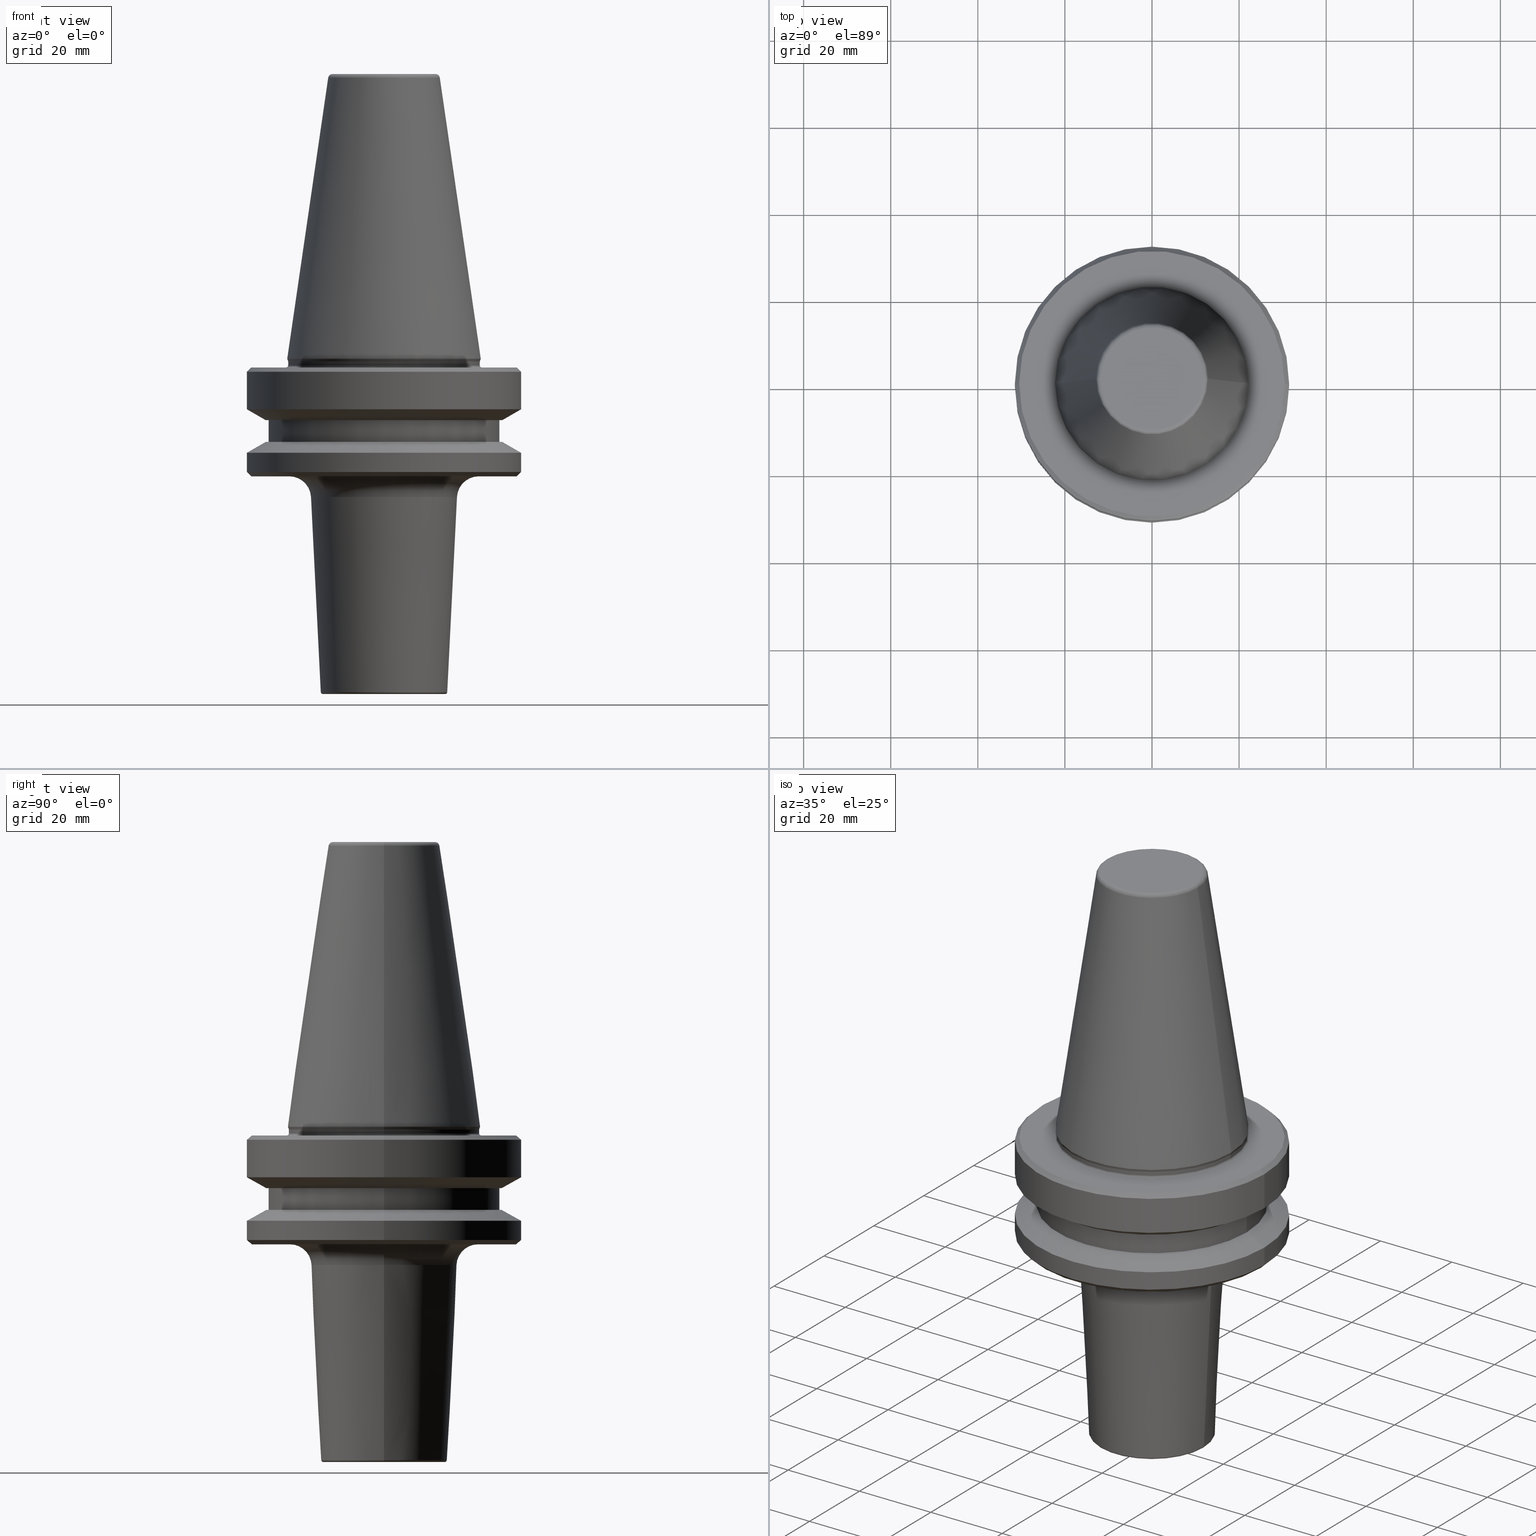
[diagram: canonical four-view strip — front | top / right | iso, engineering-drawing reading convention]
A machine part, canonical four-view strip (front | top / right | iso — engineering-drawing reading convention). The complete STEP part file that produces these views, byte-faithful:
ISO-10303-21;
HEADER;
FILE_DESCRIPTION (( 'STEP AP203' ),
    '1' );
FILE_NAME ('BT40 MCA16 050 AD+B-2.5G 25000 SL.STEP',
    '2019-05-24T10:21:05',
    ( '' ),
    ( '' ),
    'SwSTEP 2.0',
    'SolidWorks 2014',
    '' );
FILE_SCHEMA (( 'CONFIG_CONTROL_DESIGN' ));
ENDSEC;

DATA;
#1 = AXIS2_PLACEMENT_3D ( 'NONE', #836, #97, #897 ) ;
#2 = CIRCLE ( 'NONE', #965, 12.81220206925736900 ) ;
#3 = ORIENTED_EDGE ( 'NONE', *, *, #66, .F. ) ;
#4 = CARTESIAN_POINT ( 'NONE',  ( -14.02437539013776500, 1.717490643157312500E-015, -141.9000000000083300 ) ) ;
#5 = TOROIDAL_SURFACE ( 'NONE', #194, 21.75624609862519400, 5.000000000000001800 ) ;
#6 = DIRECTION ( 'NONE',  ( 1.000000000000000000, 0.0000000000000000000, 0.0000000000000000000 ) ) ;
#7 = EDGE_LOOP ( 'NONE', ( #12, #739, #365, #187 ) ) ;
#8 = DIRECTION ( 'NONE',  ( 0.0000000000000000000, -1.000000000000000000, 0.0000000000000000000 ) ) ;
#9 = CIRCLE ( 'NONE', #388, 27.16962701892256100 ) ;
#10 = CARTESIAN_POINT ( 'NONE',  ( 31.50000000000008500, 0.0000000000000000000, -76.99985799368391800 ) ) ;
#11 = DIRECTION ( 'NONE',  ( -0.0000000000000000000, -0.0000000000000000000, 1.000000000000000000 ) ) ;
#12 = ORIENTED_EDGE ( 'NONE', *, *, #698, .F. ) ;
#13 = EDGE_CURVE ( 'NONE', #632, #335, #511, .T. ) ;
#14 = DIRECTION ( 'NONE',  ( 1.000000000000000000, 0.0000000000000000000, 0.0000000000000000000 ) ) ;
#15 = CARTESIAN_POINT ( 'NONE',  ( -31.50000000000008500, 3.857637417314172900E-015, -91.40000000000037500 ) ) ;
#16 = DIRECTION ( 'NONE',  ( 0.04993761694389223200, 0.0000000000000000000, 0.9987523388778446500 ) ) ;
#17 = CIRCLE ( 'NONE', #304, 21.75624609862519400 ) ;
#18 = APPROVAL ( #585, 'UNSPECIFIED' ) ;
#19 = DIRECTION ( 'NONE',  ( -0.0000000000000000000, -0.0000000000000000000, 1.000000000000000000 ) ) ;
#20 = ADVANCED_FACE ( 'NONE', ( #780, #207 ), #107, .F. ) ;
#21 = APPROVAL_DATE_TIME ( #245, #18 ) ;
#22 = VERTEX_POINT ( 'NONE', #872 ) ;
#23 = AXIS2_PLACEMENT_3D ( 'NONE', #183, #498, #99 ) ;
#24 = VERTEX_POINT ( 'NONE', #168 ) ;
#25 = PERSON_AND_ORGANIZATION ( #826, #920 ) ;
#26 = EDGE_LOOP ( 'NONE', ( #993, #489 ) ) ;
#27 = ORIENTED_EDGE ( 'NONE', *, *, #296, .F. ) ;
#28 = CIRCLE ( 'NONE', #713, 30.49999999999997200 ) ;
#29 = DIRECTION ( 'NONE',  ( 0.0000000000000000000, 0.0000000000000000000, -1.000000000000000000 ) ) ;
#30 = ORIENTED_EDGE ( 'NONE', *, *, #617, .T. ) ;
#31 = EDGE_CURVE ( 'NONE', #255, #559, #309, .T. ) ;
#32 = ORIENTED_EDGE ( 'NONE', *, *, #766, .T. ) ;
#33 =( GEOMETRIC_REPRESENTATION_CONTEXT ( 3 ) GLOBAL_UNCERTAINTY_ASSIGNED_CONTEXT ( ( #251 ) ) GLOBAL_UNIT_ASSIGNED_CONTEXT ( ( #257, #727, #979 ) ) REPRESENTATION_CONTEXT ( 'NONE', 'WORKASPACE' ) );
#34 = FACE_OUTER_BOUND ( 'NONE', #392, .T. ) ;
#35 = LINE ( 'NONE', #657, #848 ) ;
#36 = DIRECTION ( 'NONE',  ( 0.0000000000000000000, 0.0000000000000000000, -1.000000000000000000 ) ) ;
#37 = AXIS2_PLACEMENT_3D ( 'NONE', #708, #803, #14 ) ;
#38 = ADVANCED_FACE ( 'NONE', ( #896 ), #5, .F. ) ;
#39 = CARTESIAN_POINT ( 'NONE',  ( 0.0000000000000000000, 0.0000000000000000000, -97.15031191528855500 ) ) ;
#40 = CARTESIAN_POINT ( 'NONE',  ( 0.0000000000000000000, 0.0000000000000000000, -142.4000000000080200 ) ) ;
#41 = CARTESIAN_POINT ( 'NONE',  ( -11.82266927716813000, 1.447859408766170200E-015, -1.000000000000334000 ) ) ;
#42 = APPROVAL_PERSON_ORGANIZATION ( #273, #18, #806 ) ;
#43 = DIRECTION ( 'NONE',  ( 1.000000000000000000, 0.0000000000000000000, 0.0000000000000000000 ) ) ;
#44 = AXIS2_PLACEMENT_3D ( 'NONE', #148, #321, #324 ) ;
#45 = CIRCLE ( 'NONE', #431, 5.000000000000004400 ) ;
#46 = ADVANCED_FACE ( 'NONE', ( #552 ), #948, .T. ) ;
#47 = ORIENTED_EDGE ( 'NONE', *, *, #485, .T. ) ;
#48 = VERTEX_POINT ( 'NONE', #337 ) ;
#49 = ORIENTED_EDGE ( 'NONE', *, *, #811, .T. ) ;
#50 = COORDINATED_UNIVERSAL_TIME_OFFSET ( 5, 30, .AHEAD. ) ;
#51 = VERTEX_POINT ( 'NONE', #881 ) ;
#52 = DIRECTION ( 'NONE',  ( -0.0000000000000000000, -0.0000000000000000000, 1.000000000000000000 ) ) ;
#53 = DIRECTION ( 'NONE',  ( 1.000000000000000000, 0.0000000000000000000, 0.0000000000000000000 ) ) ;
#54 = ORIENTED_EDGE ( 'NONE', *, *, #152, .T. ) ;
#55 = DIRECTION ( 'NONE',  ( 0.3420201433262311000, 0.0000000000000000000, 0.9396926207857037000 ) ) ;
#56 = AXIS2_PLACEMENT_3D ( 'NONE', #448, #128, #523 ) ;
#57 = EDGE_CURVE ( 'NONE', #973, #357, #350, .T. ) ;
#58 = EDGE_LOOP ( 'NONE', ( #736, #47, #919, #27 ) ) ;
#59 = DIRECTION ( 'NONE',  ( 1.000000000000000000, 0.0000000000000000000, 0.0000000000000000000 ) ) ;
#60 = FACE_OUTER_BOUND ( 'NONE', #533, .T. ) ;
#61 = ORIENTED_EDGE ( 'NONE', *, *, #435, .T. ) ;
#62 = PLANE ( 'NONE',  #474 ) ;
#63 = CARTESIAN_POINT ( 'NONE',  ( 27.16962701892256100, 3.592478546794633900E-015, -84.50000000000068200 ) ) ;
#64 = VECTOR ( 'NONE', #684, 1000.000000000000100 ) ;
#65 = CONICAL_SURFACE ( 'NONE', #1, 31.50000000000008500, 1.047197551196597400 ) ;
#66 = EDGE_CURVE ( 'NONE', #675, #899, #157, .T. ) ;
#67 = CONICAL_SURFACE ( 'NONE', #800, 31.50000000000008500, 1.047197551196587000 ) ;
#68 = EDGE_CURVE ( 'NONE', #823, #814, #742, .T. ) ;
#69 = CC_DESIGN_APPROVAL ( #18, ( #914 ) ) ;
#70 = CARTESIAN_POINT ( 'NONE',  ( -22.02412295168553100, 2.697177167680943700E-015, -65.95190515433003500 ) ) ;
#71 = CONICAL_SURFACE ( 'NONE', #751, 16.76248440423597300, 0.04995839572194275800 ) ;
#72 = FACE_OUTER_BOUND ( 'NONE', #415, .T. ) ;
#73 = DIRECTION ( 'NONE',  ( 1.000000000000000000, 0.0000000000000000000, 0.0000000000000000000 ) ) ;
#74 = DIRECTION ( 'NONE',  ( 1.000000000000000000, 0.0000000000000000000, 0.0000000000000000000 ) ) ;
#75 = VERTEX_POINT ( 'NONE', #923 ) ;
#76 = ORIENTED_EDGE ( 'NONE', *, *, #202, .T. ) ;
#77 = ORIENTED_EDGE ( 'NONE', *, *, #444, .T. ) ;
#78 = SHAPE_DEFINITION_REPRESENTATION ( #586, #526 ) ;
#79 = AXIS2_PLACEMENT_3D ( 'NONE', #597, #522, #126 ) ;
#80 = FACE_OUTER_BOUND ( 'NONE', #746, .T. ) ;
#81 = APPLICATION_PROTOCOL_DEFINITION ( 'international standard', 'config_control_design', 1994, #417 ) ;
#82 = DIRECTION ( 'NONE',  ( -0.0000000000000000000, -0.0000000000000000000, 1.000000000000000000 ) ) ;
#83 = ORIENTED_EDGE ( 'NONE', *, *, #121, .T. ) ;
#84 = CARTESIAN_POINT ( 'NONE',  ( 26.50000000000019200, 0.0000000000000000000, 6.357346922996331500 ) ) ;
#85 = DIRECTION ( 'NONE',  ( -0.0000000000000000000, -0.0000000000000000000, 1.000000000000000000 ) ) ;
#86 = EDGE_LOOP ( 'NONE', ( #1045, #281, #589, #453 ) ) ;
#87 = EDGE_CURVE ( 'NONE', #310, #75, #763, .T. ) ;
#88 = ORIENTED_EDGE ( 'NONE', *, *, #904, .F. ) ;
#89 = CARTESIAN_POINT ( 'NONE',  ( 0.0000000000000000000, 0.0000000000000000000, 0.0000000000000000000 ) ) ;
#90 = ORIENTED_EDGE ( 'NONE', *, *, #516, .F. ) ;
#91 = FACE_OUTER_BOUND ( 'NONE', #525, .T. ) ;
#92 = DIRECTION ( 'NONE',  ( 1.224646799147353200E-016, 1.000000000000000000, 0.0000000000000000000 ) ) ;
#93 = ORIENTED_EDGE ( 'NONE', *, *, #320, .T. ) ;
#94 = AXIS2_PLACEMENT_3D ( 'NONE', #614, #809, #645 ) ;
#95 = PERSON_AND_ORGANIZATION_ROLE ( 'design_owner' ) ;
#96 = FACE_OUTER_BOUND ( 'NONE', #795, .T. ) ;
#97 = DIRECTION ( 'NONE',  ( -0.0000000000000000000, -0.0000000000000000000, 1.000000000000000000 ) ) ;
#98 = AXIS2_PLACEMENT_3D ( 'NONE', #768, #8, #761 ) ;
#99 = DIRECTION ( 'NONE',  ( -1.000000000000000000, 0.0000000000000000000, 0.0000000000000000000 ) ) ;
#100 = DIRECTION ( 'NONE',  ( 0.8660254037844332700, 1.060575238724900300E-016, -0.5000000000000093300 ) ) ;
#101 = AXIS2_PLACEMENT_3D ( 'NONE', #125, #355, #400 ) ;
#102 = DIRECTION ( 'NONE',  ( 1.000000000000000000, 0.0000000000000000000, 0.0000000000000000000 ) ) ;
#103 = EDGE_CURVE ( 'NONE', #154, #276, #406, .T. ) ;
#104 = DIRECTION ( 'NONE',  ( -1.000000000000000000, 0.0000000000000000000, -0.0000000000000000000 ) ) ;
#105 = CARTESIAN_POINT ( 'NONE',  ( -31.50000000000008500, 0.0000000000000000000, -87.00014200631733300 ) ) ;
#106 = AXIS2_PLACEMENT_3D ( 'NONE', #244, #789, #818 ) ;
#107 = PLANE ( 'NONE',  #94 ) ;
#108 = ADVANCED_FACE ( 'NONE', ( #1012 ), #599, .T. ) ;
#109 = EDGE_CURVE ( 'NONE', #225, #24, #575, .T. ) ;
#110 = DIRECTION ( 'NONE',  ( 1.000000000000000000, 0.0000000000000000000, 0.0000000000000000000 ) ) ;
#111 = DIRECTION ( 'NONE',  ( -0.3420201433262311000, 4.188538737683878900E-017, 0.9396926207857037000 ) ) ;
#112 = AXIS2_PLACEMENT_3D ( 'NONE', #374, #439, #1014 ) ;
#113 = FACE_OUTER_BOUND ( 'NONE', #994, .T. ) ;
#114 = AXIS2_PLACEMENT_3D ( 'NONE', #737, #163, #563 ) ;
#115 = EDGE_LOOP ( 'NONE', ( #607, #119, #442, #239 ) ) ;
#116 = DIRECTION ( 'NONE',  ( 1.000000000000000000, 0.0000000000000000000, 0.0000000000000000000 ) ) ;
#117 = DATE_TIME_ROLE ( 'creation_date' ) ;
#118 = FACE_OUTER_BOUND ( 'NONE', #467, .T. ) ;
#119 = ORIENTED_EDGE ( 'NONE', *, *, #241, .T. ) ;
#120 = CARTESIAN_POINT ( 'NONE',  ( 0.0000000000000000000, 0.0000000000000000000, 6.357346922996331500 ) ) ;
#121 = EDGE_CURVE ( 'NONE', #279, #750, #274, .T. ) ;
#122 = CARTESIAN_POINT ( 'NONE',  ( 0.0000000000000000000, 0.0000000000000000000, -65.95190515433003500 ) ) ;
#123 = ORIENTED_EDGE ( 'NONE', *, *, #87, .F. ) ;
#124 = CC_DESIGN_SECURITY_CLASSIFICATION ( #914, ( #631 ) ) ;
#125 = CARTESIAN_POINT ( 'NONE',  ( 0.0000000000000000000, 0.0000000000000000000, -0.8556918111122247000 ) ) ;
#126 = DIRECTION ( 'NONE',  ( 1.000000000000000000, 0.0000000000000000000, 0.0000000000000000000 ) ) ;
#127 = VERTEX_POINT ( 'NONE', #1041 ) ;
#128 = DIRECTION ( 'NONE',  ( 1.224646799147353200E-016, 1.000000000000000000, 0.0000000000000000000 ) ) ;
#129 = CYLINDRICAL_SURFACE ( 'NONE', #894, 31.50000000000008500 ) ;
#130 = DIRECTION ( 'NONE',  ( -1.000000000000000000, 0.0000000000000000000, -0.0000000000000000000 ) ) ;
#131 = CARTESIAN_POINT ( 'NONE',  ( 22.49999999999996400, 0.0000000000000000000, -66.90000000000040400 ) ) ;
#132 = AXIS2_PLACEMENT_3D ( 'NONE', #41, #212, #760 ) ;
#133 = AXIS2_PLACEMENT_3D ( 'NONE', #825, #242, #430 ) ;
#134 = CARTESIAN_POINT ( 'NONE',  ( -27.16962701892256100, 0.0000000000000000000, -84.50000000000068200 ) ) ;
#135 = CARTESIAN_POINT ( 'NONE',  ( 0.0000000000000000000, 0.0000000000000000000, -91.40000000000037500 ) ) ;
#136 = ORIENTED_EDGE ( 'NONE', *, *, #31, .T. ) ;
#137 = ORIENTED_EDGE ( 'NONE', *, *, #68, .F. ) ;
#138 = FACE_OUTER_BOUND ( 'NONE', #557, .T. ) ;
#139 = ORIENTED_EDGE ( 'NONE', *, *, #280, .T. ) ;
#140 = DIRECTION ( 'NONE',  ( -0.0000000000000000000, -0.0000000000000000000, 1.000000000000000000 ) ) ;
#141 = DIRECTION ( 'NONE',  ( -0.0000000000000000000, -0.0000000000000000000, 1.000000000000000000 ) ) ;
#142 = EDGE_CURVE ( 'NONE', #127, #996, #323, .T. ) ;
#143 = CIRCLE ( 'NONE', #1004, 0.4999999999996968500 ) ;
#144 = LINE ( 'NONE', #254, #977 ) ;
#145 = DIRECTION ( 'NONE',  ( 1.000000000000000000, 0.0000000000000000000, 0.0000000000000000000 ) ) ;
#146 = ORIENTED_EDGE ( 'NONE', *, *, #904, .T. ) ;
#147 = DIRECTION ( 'NONE',  ( -0.0000000000000000000, -0.0000000000000000000, 1.000000000000000000 ) ) ;
#148 = CARTESIAN_POINT ( 'NONE',  ( 0.0000000000000000000, 0.0000000000000000000, -91.40000000000037500 ) ) ;
#149 = CARTESIAN_POINT ( 'NONE',  ( -21.75624609862519400, 2.664371714614343700E-015, -92.40000000000802100 ) ) ;
#150 = AXIS2_PLACEMENT_3D ( 'NONE', #371, #890, #436 ) ;
#151 = CIRCLE ( 'NONE', #1032, 22.00000000000002100 ) ;
#152 = EDGE_CURVE ( 'NONE', #357, #973, #880, .T. ) ;
#153 = DIRECTION ( 'NONE',  ( 1.000000000000000000, 0.0000000000000000000, 0.0000000000000000000 ) ) ;
#154 = VERTEX_POINT ( 'NONE', #832 ) ;
#155 = AXIS2_PLACEMENT_3D ( 'NONE', #218, #912, #693 ) ;
#156 = CIRCLE ( 'NONE', #835, 0.4999999999999449300 ) ;
#157 = CIRCLE ( 'NONE', #285, 22.49999999999996400 ) ;
#158 = COORDINATED_UNIVERSAL_TIME_OFFSET ( 5, 30, .AHEAD. ) ;
#159 = AXIS2_PLACEMENT_3D ( 'NONE', #404, #469, #629 ) ;
#160 = EDGE_CURVE ( 'NONE', #663, #899, #940, .T. ) ;
#161 = CIRCLE ( 'NONE', #44, 31.50000000000008500 ) ;
#162 = EDGE_CURVE ( 'NONE', #200, #154, #535, .T. ) ;
#163 = DIRECTION ( 'NONE',  ( -0.0000000000000000000, -0.0000000000000000000, 1.000000000000000000 ) ) ;
#164 = ORIENTED_EDGE ( 'NONE', *, *, #837, .T. ) ;
#165 = DIRECTION ( 'NONE',  ( 0.0000000000000000000, -0.0000000000000000000, 1.000000000000000000 ) ) ;
#166 = EDGE_CURVE ( 'NONE', #75, #310, #972, .T. ) ;
#167 = ORIENTED_EDGE ( 'NONE', *, *, #172, .T. ) ;
#168 = CARTESIAN_POINT ( 'NONE',  ( 31.50000000000008500, 0.0000000000000000000, -87.00014200631733300 ) ) ;
#169 = AXIS2_PLACEMENT_3D ( 'NONE', #850, #682, #43 ) ;
#170 = FACE_BOUND ( 'NONE', #204, .T. ) ;
#171 = ADVANCED_FACE ( 'NONE', ( #138 ), #949, .T. ) ;
#172 = EDGE_CURVE ( 'NONE', #51, #996, #747, .T. ) ;
#173 = ORIENTED_EDGE ( 'NONE', *, *, #844, .F. ) ;
#174 = DIRECTION ( 'NONE',  ( -0.0000000000000000000, -0.0000000000000000000, 1.000000000000000000 ) ) ;
#175 = ORIENTED_EDGE ( 'NONE', *, *, #166, .T. ) ;
#176 = APPROVAL_STATUS ( 'not_yet_approved' ) ;
#177 = EDGE_CURVE ( 'NONE', #362, #513, #696, .T. ) ;
#178 = CARTESIAN_POINT ( 'NONE',  ( 0.0000000000000000000, -1.466541268094996700E-013, -92.40000000000803500 ) ) ;
#179 = DIRECTION ( 'NONE',  ( -0.0000000000000000000, -0.0000000000000000000, 1.000000000000000000 ) ) ;
#180 = ORIENTED_EDGE ( 'NONE', *, *, #603, .T. ) ;
#181 = ADVANCED_FACE ( 'NONE', ( #80 ), #502, .T. ) ;
#182 = VERTEX_POINT ( 'NONE', #859 ) ;
#183 = CARTESIAN_POINT ( 'NONE',  ( 0.0000000000000000000, 0.0000000000000000000, -67.40000000000034700 ) ) ;
#184 = FACE_OUTER_BOUND ( 'NONE', #1053, .T. ) ;
#185 = DIRECTION ( 'NONE',  ( -1.000000000000000000, 0.0000000000000000000, 0.0000000000000000000 ) ) ;
#186 = DIRECTION ( 'NONE',  ( 1.000000000000000000, 0.0000000000000000000, 0.0000000000000000000 ) ) ;
#187 = ORIENTED_EDGE ( 'NONE', *, *, #13, .F. ) ;
#188 = DIRECTION ( 'NONE',  ( -0.0000000000000000000, -0.0000000000000000000, 1.000000000000000000 ) ) ;
#189 = PRODUCT_RELATED_PRODUCT_CATEGORY ( 'detail', '', ( #956 ) ) ;
#190 = CARTESIAN_POINT ( 'NONE',  ( -11.82266927716813000, 1.508450817090336800E-015, -4.440892098500626200E-013 ) ) ;
#191 = FACE_OUTER_BOUND ( 'NONE', #891, .T. ) ;
#192 = DIRECTION ( 'NONE',  ( -0.0000000000000000000, -0.0000000000000000000, 1.000000000000000000 ) ) ;
#193 = CARTESIAN_POINT ( 'NONE',  ( 0.0000000000000000000, 0.0000000000000000000, 6.357346922996331500 ) ) ;
#194 = AXIS2_PLACEMENT_3D ( 'NONE', #735, #906, #328 ) ;
#195 = DIRECTION ( 'NONE',  ( -0.0000000000000000000, -0.0000000000000000000, 1.000000000000000000 ) ) ;
#196 = EDGE_LOOP ( 'NONE', ( #1021, #88, #379, #301 ) ) ;
#197 = CALENDAR_DATE ( 2019, 24, 5 ) ;
#198 = ORIENTED_EDGE ( 'NONE', *, *, #550, .T. ) ;
#199 = LINE ( 'NONE', #567, #390 ) ;
#200 = VERTEX_POINT ( 'NONE', #315 ) ;
#201 = CARTESIAN_POINT ( 'NONE',  ( 0.0000000000000000000, 0.0000000000000000000, -141.9000000000083300 ) ) ;
#202 = EDGE_CURVE ( 'NONE', #389, #255, #299, .T. ) ;
#203 = ORIENTED_EDGE ( 'NONE', *, *, #905, .T. ) ;
#204 = EDGE_LOOP ( 'NONE', ( #930, #480 ) ) ;
#205 = EDGE_CURVE ( 'NONE', #300, #855, #45, .T. ) ;
#206 = CONICAL_SURFACE ( 'NONE', #438, 12.81220206925736900, 0.1448138077623198300 ) ;
#207 = FACE_OUTER_BOUND ( 'NONE', #901, .T. ) ;
#208 = DIRECTION ( 'NONE',  ( 1.000000000000000000, 0.0000000000000000000, 0.0000000000000000000 ) ) ;
#209 = AXIS2_PLACEMENT_3D ( 'NONE', #749, #147, #895 ) ;
#210 = TOROIDAL_SURFACE ( 'NONE', #508, 22.49999999999996400, 0.4999999999999449300 ) ;
#211 = AXIS2_PLACEMENT_3D ( 'NONE', #272, #195, #719 ) ;
#212 = DIRECTION ( 'NONE',  ( 1.224646799147353200E-016, 1.000000000000000000, 0.0000000000000000000 ) ) ;
#213 = CARTESIAN_POINT ( 'NONE',  ( -31.50000000000008500, 3.857637417314172900E-015, -76.99985799368391800 ) ) ;
#214 = CARTESIAN_POINT ( 'NONE',  ( 22.00000000000002100, 0.0000000000000000000, 6.357346922996331500 ) ) ;
#215 = ORIENTED_EDGE ( 'NONE', *, *, #418, .F. ) ;
#216 = VERTEX_POINT ( 'NONE', #10 ) ;
#217 = ORIENTED_EDGE ( 'NONE', *, *, #121, .F. ) ;
#218 = CARTESIAN_POINT ( 'NONE',  ( 0.0000000000000000000, 0.0000000000000000000, 6.357346922996331500 ) ) ;
#219 = DATE_AND_TIME ( #434, #640 ) ;
#220 = CARTESIAN_POINT ( 'NONE',  ( 0.0000000000000000000, 0.0000000000000000000, -66.08871321165987900 ) ) ;
#221 = DIRECTION ( 'NONE',  ( -0.0000000000000000000, -0.0000000000000000000, 1.000000000000000000 ) ) ;
#222 = AXIS2_PLACEMENT_3D ( 'NONE', #366, #712, #798 ) ;
#223 = DIRECTION ( 'NONE',  ( -0.0000000000000000000, -0.0000000000000000000, 1.000000000000000000 ) ) ;
#224 = ORIENTED_EDGE ( 'NONE', *, *, #550, .F. ) ;
#225 = VERTEX_POINT ( 'NONE', #781 ) ;
#226 = CARTESIAN_POINT ( 'NONE',  ( 0.0000000000000000000, 0.0000000000000000000, -87.00014200631733300 ) ) ;
#227 = CIRCLE ( 'NONE', #150, 31.50000000000008500 ) ;
#228 = AXIS2_PLACEMENT_3D ( 'NONE', #135, #451, #849 ) ;
#229 = DIRECTION ( 'NONE',  ( 1.000000000000000000, 0.0000000000000000000, 0.0000000000000000000 ) ) ;
#230 = DIRECTION ( 'NONE',  ( -0.0000000000000000000, -0.0000000000000000000, 1.000000000000000000 ) ) ;
#231 = ORIENTED_EDGE ( 'NONE', *, *, #68, .T. ) ;
#232 = EDGE_CURVE ( 'NONE', #310, #279, #275, .T. ) ;
#233 = DIRECTION ( 'NONE',  ( -0.0000000000000000000, -0.0000000000000000000, 1.000000000000000000 ) ) ;
#234 = DIRECTION ( 'NONE',  ( -1.000000000000000000, 1.224646799147354400E-016, 0.0000000000000000000 ) ) ;
#235 = CARTESIAN_POINT ( 'NONE',  ( 0.0000000000000000000, 0.0000000000000000000, -79.50000000000012800 ) ) ;
#236 = AXIS2_PLACEMENT_3D ( 'NONE', #40, #297, #102 ) ;
#237 = FACE_OUTER_BOUND ( 'NONE', #58, .T. ) ;
#238 = DIRECTION ( 'NONE',  ( -0.7071067811865474600, 0.0000000000000000000, -0.7071067811865475700 ) ) ;
#239 = ORIENTED_EDGE ( 'NONE', *, *, #992, .F. ) ;
#240 = VECTOR ( 'NONE', #373, 1000.000000000000200 ) ;
#241 = EDGE_CURVE ( 'NONE', #559, #225, #161, .T. ) ;
#242 = DIRECTION ( 'NONE',  ( 0.0000000000000000000, 0.0000000000000000000, -1.000000000000000000 ) ) ;
#243 = ADVANCED_FACE ( 'NONE', ( #72 ), #65, .T. ) ;
#244 = CARTESIAN_POINT ( 'NONE',  ( 0.0000000000000000000, 0.0000000000000000000, -92.40000000000802100 ) ) ;
#245 = DATE_AND_TIME ( #450, #661 ) ;
#246 = CARTESIAN_POINT ( 'NONE',  ( 0.0000000000000000000, 0.0000000000000000000, -66.08871321165987900 ) ) ;
#247 = VERTEX_POINT ( 'NONE', #149 ) ;
#248 = DIRECTION ( 'NONE',  ( -0.1443081888881795900, 0.0000000000000000000, -0.9895327920891826600 ) ) ;
#249 = AXIS2_PLACEMENT_3D ( 'NONE', #1006, #11, #145 ) ;
#250 = APPROVAL_DATE_TIME ( #454, #421 ) ;
#251 = UNCERTAINTY_MEASURE_WITH_UNIT (LENGTH_MEASURE( 1.000000000000000100E-005 ), #257, 'distance_accuracy_value', 'NONE');
#252 = FACE_OUTER_BOUND ( 'NONE', #929, .T. ) ;
#253 = DIRECTION ( 'NONE',  ( -0.0000000000000000000, -0.0000000000000000000, 1.000000000000000000 ) ) ;
#254 = CARTESIAN_POINT ( 'NONE',  ( -22.22499999999993700, 2.721777511104985000E-015, -65.40000000000057400 ) ) ;
#255 = VERTEX_POINT ( 'NONE', #796 ) ;
#256 = EDGE_LOOP ( 'NONE', ( #885, #396, #639, #710 ) ) ;
#257 =( LENGTH_UNIT ( ) NAMED_UNIT ( * ) SI_UNIT ( .MILLI., .METRE. ) );
#258 = ORIENTED_EDGE ( 'NONE', *, *, #418, .T. ) ;
#259 = LINE ( 'NONE', #770, #468 ) ;
#260 = AXIS2_PLACEMENT_3D ( 'NONE', #89, #975, #656 ) ;
#261 = ADVANCED_FACE ( 'NONE', ( #378, #409 ), #473, .T. ) ;
#262 = AXIS2_PLACEMENT_3D ( 'NONE', #560, #397, #73 ) ;
#263 = PERSON_AND_ORGANIZATION_ROLE ( 'creator' ) ;
#264 = CARTESIAN_POINT ( 'NONE',  ( -27.16962701892322600, 3.592478546794674900E-015, -79.50000000000012800 ) ) ;
#265 = CARTESIAN_POINT ( 'NONE',  ( 0.0000000000000000000, 0.0000000000000000000, -67.40000000000034700 ) ) ;
#266 = DIRECTION ( 'NONE',  ( -0.0000000000000000000, -0.0000000000000000000, 1.000000000000000000 ) ) ;
#267 = DIRECTION ( 'NONE',  ( 1.000000000000000000, 0.0000000000000000000, 0.0000000000000000000 ) ) ;
#268 = CIRCLE ( 'NONE', #132, 0.9999999999999696900 ) ;
#269 = CARTESIAN_POINT ( 'NONE',  ( 22.49999999999996400, 0.0000000000000000000, -67.40000000000034700 ) ) ;
#270 = AXIS2_PLACEMENT_3D ( 'NONE', #39, #666, #988 ) ;
#271 = DIRECTION ( 'NONE',  ( 1.000000000000000000, 0.0000000000000000000, 0.0000000000000000000 ) ) ;
#272 = CARTESIAN_POINT ( 'NONE',  ( 0.0000000000000000000, 0.0000000000000000000, -4.440892098500626200E-013 ) ) ;
#273 = PERSON_AND_ORGANIZATION ( #826, #920 ) ;
#274 = CIRCLE ( 'NONE', #114, 14.52375155957638600 ) ;
#275 = CIRCLE ( 'NONE', #98, 0.4999999999996951300 ) ;
#276 = VERTEX_POINT ( 'NONE', #842 ) ;
#277 = AXIS2_PLACEMENT_3D ( 'NONE', #496, #333, #892 ) ;
#278 = ORIENTED_EDGE ( 'NONE', *, *, #232, .F. ) ;
#279 = VERTEX_POINT ( 'NONE', #924 ) ;
#280 = EDGE_CURVE ( 'NONE', #335, #632, #517, .T. ) ;
#281 = ORIENTED_EDGE ( 'NONE', *, *, #889, .T. ) ;
#282 = DIRECTION ( 'NONE',  ( -0.0000000000000000000, -0.0000000000000000000, 1.000000000000000000 ) ) ;
#283 = APPROVAL_PERSON_ORGANIZATION ( #482, #421, #342 ) ;
#284 = DIRECTION ( 'NONE',  ( -0.0000000000000000000, -0.0000000000000000000, 1.000000000000000000 ) ) ;
#285 = AXIS2_PLACEMENT_3D ( 'NONE', #265, #188, #345 ) ;
#286 = ORIENTED_EDGE ( 'NONE', *, *, #706, .F. ) ;
#287 = ADVANCED_FACE ( 'NONE', ( #801 ), #624, .T. ) ;
#288 = EDGE_CURVE ( 'NONE', #255, #389, #543, .T. ) ;
#289 = AXIS2_PLACEMENT_3D ( 'NONE', #226, #532, #779 ) ;
#290 = DIRECTION ( 'NONE',  ( 0.7071067811865474600, 8.659560562354931600E-017, -0.7071067811865475700 ) ) ;
#291 = EDGE_CURVE ( 'NONE', #1035, #127, #2, .T. ) ;
#292 = ORIENTED_EDGE ( 'NONE', *, *, #1037, .F. ) ;
#293 = CIRCLE ( 'NONE', #112, 22.00000000000002100 ) ;
#294 = CARTESIAN_POINT ( 'NONE',  ( 0.0000000000000000000, 0.0000000000000000000, -87.00014200631733300 ) ) ;
#295 = FACE_OUTER_BOUND ( 'NONE', #928, .T. ) ;
#296 = EDGE_CURVE ( 'NONE', #785, #942, #307, .T. ) ;
#297 = DIRECTION ( 'NONE',  ( -0.0000000000000000000, -0.0000000000000000000, 1.000000000000000000 ) ) ;
#298 = ADVANCED_FACE ( 'NONE', ( #647 ), #716, .F. ) ;
#299 = CIRCLE ( 'NONE', #277, 30.49999999999241900 ) ;
#300 = VERTEX_POINT ( 'NONE', #340 ) ;
#301 = ORIENTED_EDGE ( 'NONE', *, *, #66, .T. ) ;
#302 = ORIENTED_EDGE ( 'NONE', *, *, #603, .F. ) ;
#303 = CARTESIAN_POINT ( 'NONE',  ( -14.52375155957638600, 1.778646585904660200E-015, -141.9249688084802600 ) ) ;
#304 = AXIS2_PLACEMENT_3D ( 'NONE', #459, #381, #531 ) ;
#305 = DIRECTION ( 'NONE',  ( -0.0000000000000000000, -0.0000000000000000000, 1.000000000000000000 ) ) ;
#306 = VERTEX_POINT ( 'NONE', #63 ) ;
#307 = LINE ( 'NONE', #105, #510 ) ;
#308 = DIRECTION ( 'NONE',  ( -1.000000000000000000, 0.0000000000000000000, 0.0000000000000000000 ) ) ;
#309 = LINE ( 'NONE', #15, #870 ) ;
#310 = VERTEX_POINT ( 'NONE', #425 ) ;
#311 = ADVANCED_FACE ( 'NONE', ( #883 ), #71, .T. ) ;
#312 = ORIENTED_EDGE ( 'NONE', *, *, #202, .F. ) ;
#313 = ORIENTED_EDGE ( 'NONE', *, *, #162, .F. ) ;
#314 = CIRCLE ( 'NONE', #1052, 31.50000000000008500 ) ;
#315 = CARTESIAN_POINT ( 'NONE',  ( -26.50000000000019200, 3.245314017740509400E-015, -84.50000000000068200 ) ) ;
#316 = AXIS2_PLACEMENT_3D ( 'NONE', #402, #549, #74 ) ;
#317 = DIRECTION ( 'NONE',  ( 1.000000000000000000, 0.0000000000000000000, 0.0000000000000000000 ) ) ;
#318 = CONICAL_SURFACE ( 'NONE', #573, 12.81220206925736900, 0.1448138077623198300 ) ;
#319 = CC_DESIGN_PERSON_AND_ORGANIZATION_ASSIGNMENT ( #690, #95, ( #956 ) ) ;
#320 = EDGE_CURVE ( 'NONE', #556, #814, #605, .T. ) ;
#321 = DIRECTION ( 'NONE',  ( -0.0000000000000000000, -0.0000000000000000000, 1.000000000000000000 ) ) ;
#322 = EDGE_CURVE ( 'NONE', #75, #750, #143, .T. ) ;
#323 = LINE ( 'NONE', #536, #662 ) ;
#324 = DIRECTION ( 'NONE',  ( 1.000000000000000000, 0.0000000000000000000, 0.0000000000000000000 ) ) ;
#325 = AXIS2_PLACEMENT_3D ( 'NONE', #343, #266, #186 ) ;
#326 = ORIENTED_EDGE ( 'NONE', *, *, #444, .F. ) ;
#327 = ORIENTED_EDGE ( 'NONE', *, *, #992, .T. ) ;
#328 = DIRECTION ( 'NONE',  ( 1.000000000000000000, 0.0000000000000000000, 0.0000000000000000000 ) ) ;
#329 = ADVANCED_FACE ( 'NONE', ( #908 ), #802, .T. ) ;
#330 = VECTOR ( 'NONE', #858, 1000.000000000000000 ) ;
#331 = CARTESIAN_POINT ( 'NONE',  ( -26.50000000000019200, 3.245314017740509400E-015, 6.357346922996331500 ) ) ;
#332 = CARTESIAN_POINT ( 'NONE',  ( -16.76248440423597300, 2.358592000877421900E-015, -97.15031191528855500 ) ) ;
#333 = DIRECTION ( 'NONE',  ( -0.0000000000000000000, -0.0000000000000000000, 1.000000000000000000 ) ) ;
#334 = PERSON_AND_ORGANIZATION_ROLE ( 'classification_officer' ) ;
#335 = VERTEX_POINT ( 'NONE', #623 ) ;
#336 = VECTOR ( 'NONE', #284, 1000.000000000000000 ) ;
#337 = CARTESIAN_POINT ( 'NONE',  ( 26.50000000000019200, 0.0000000000000000000, -84.50000000000068200 ) ) ;
#338 = AXIS2_PLACEMENT_3D ( 'NONE', #616, #952, #1025 ) ;
#339 = ORIENTED_EDGE ( 'NONE', *, *, #766, .F. ) ;
#340 = CARTESIAN_POINT ( 'NONE',  ( 21.75624609862519400, 0.0000000000000000000, -92.40000000000802100 ) ) ;
#341 = CYLINDRICAL_SURFACE ( 'NONE', #688, 22.00000000000002100 ) ;
#342 = APPROVAL_ROLE ( '' ) ;
#343 = CARTESIAN_POINT ( 'NONE',  ( 0.0000000000000000000, 0.0000000000000000000, -66.90000000000040400 ) ) ;
#344 = CARTESIAN_POINT ( 'NONE',  ( 0.0000000000000000000, 0.0000000000000000000, -0.8556918111122247000 ) ) ;
#345 = DIRECTION ( 'NONE',  ( 1.000000000000000000, 0.0000000000000000000, 0.0000000000000000000 ) ) ;
#346 = CARTESIAN_POINT ( 'NONE',  ( 0.0000000000000000000, 0.0000000000000000000, -68.40000000000046000 ) ) ;
#347 = CARTESIAN_POINT ( 'NONE',  ( 0.0000000000000000000, 0.0000000000000000000, -1.000000000000334000 ) ) ;
#348 = ORIENTED_EDGE ( 'NONE', *, *, #103, .F. ) ;
#349 = LINE ( 'NONE', #214, #741 ) ;
#350 = CIRCLE ( 'NONE', #262, 27.16962701892322600 ) ;
#351 = AXIS2_PLACEMENT_3D ( 'NONE', #765, #36, #130 ) ;
#352 = ORIENTED_EDGE ( 'NONE', *, *, #617, .F. ) ;
#353 = EDGE_CURVE ( 'NONE', #216, #823, #764, .T. ) ;
#354 = ORIENTED_EDGE ( 'NONE', *, *, #288, .T. ) ;
#355 = DIRECTION ( 'NONE',  ( -0.0000000000000000000, -0.0000000000000000000, 1.000000000000000000 ) ) ;
#356 = ORIENTED_EDGE ( 'NONE', *, *, #475, .T. ) ;
#357 = VERTEX_POINT ( 'NONE', #553 ) ;
#358 = ORIENTED_EDGE ( 'NONE', *, *, #57, .F. ) ;
#359 = FACE_OUTER_BOUND ( 'NONE', #861, .T. ) ;
#360 = ORIENTED_EDGE ( 'NONE', *, *, #829, .F. ) ;
#361 = PRODUCT_DEFINITION ( 'UNKNOWN', '', #631, #465 ) ;
#362 = VERTEX_POINT ( 'NONE', #70 ) ;
#363 = EDGE_CURVE ( 'NONE', #389, #225, #869, .T. ) ;
#364 = CARTESIAN_POINT ( 'NONE',  ( 16.76248440423597300, 0.0000000000000000000, -97.15031191528855500 ) ) ;
#365 = ORIENTED_EDGE ( 'NONE', *, *, #507, .T. ) ;
#366 = CARTESIAN_POINT ( 'NONE',  ( 0.0000000000000000000, 0.0000000000000000000, 6.357346922996331500 ) ) ;
#367 = LINE ( 'NONE', #84, #758 ) ;
#368 = DIRECTION ( 'NONE',  ( 1.000000000000000000, 0.0000000000000000000, 0.0000000000000000000 ) ) ;
#369 = CARTESIAN_POINT ( 'NONE',  ( 0.0000000000000000000, 0.0000000000000000000, -68.40000000000046000 ) ) ;
#370 = ORIENTED_EDGE ( 'NONE', *, *, #698, .T. ) ;
#371 = CARTESIAN_POINT ( 'NONE',  ( 0.0000000000000000000, 0.0000000000000000000, -91.40000000000037500 ) ) ;
#372 = VECTOR ( 'NONE', #1024, 1000.000000000000100 ) ;
#373 = DIRECTION ( 'NONE',  ( -0.04993761694389223200, 6.115594274738425400E-018, 0.9987523388778446500 ) ) ;
#374 = CARTESIAN_POINT ( 'NONE',  ( 0.0000000000000000000, 0.0000000000000000000, -66.90000000000040400 ) ) ;
#375 = VECTOR ( 'NONE', #282, 1000.000000000000000 ) ;
#376 = CARTESIAN_POINT ( 'NONE',  ( 0.0000000000000000000, 0.0000000000000000000, -66.90000000000040400 ) ) ;
#377 = DIRECTION ( 'NONE',  ( 0.0000000000000000000, -1.000000000000000000, 0.0000000000000000000 ) ) ;
#378 = FACE_OUTER_BOUND ( 'NONE', #26, .T. ) ;
#379 = ORIENTED_EDGE ( 'NONE', *, *, #824, .T. ) ;
#380 = EDGE_LOOP ( 'NONE', ( #974, #822, #77, #653 ) ) ;
#381 = DIRECTION ( 'NONE',  ( -0.0000000000000000000, -0.0000000000000000000, 1.000000000000000000 ) ) ;
#382 = PERSON_AND_ORGANIZATION ( #826, #920 ) ;
#383 = ORIENTED_EDGE ( 'NONE', *, *, #232, .T. ) ;
#384 = DIRECTION ( 'NONE',  ( 1.000000000000000000, 0.0000000000000000000, 0.0000000000000000000 ) ) ;
#385 = DIRECTION ( 'NONE',  ( -0.0000000000000000000, -0.0000000000000000000, 1.000000000000000000 ) ) ;
#386 = ADVANCED_FACE ( 'NONE', ( #60 ), #893, .T. ) ;
#387 = CARTESIAN_POINT ( 'NONE',  ( -31.50000000000008500, 3.857637417314172900E-015, -87.00014200631733300 ) ) ;
#388 = AXIS2_PLACEMENT_3D ( 'NONE', #955, #447, #967 ) ;
#389 = VERTEX_POINT ( 'NONE', #728 ) ;
#390 = VECTOR ( 'NONE', #100, 1000.000000000000000 ) ;
#391 = CARTESIAN_POINT ( 'NONE',  ( -31.50000000000008500, 3.857637417314172900E-015, -76.99985799368391800 ) ) ;
#392 = EDGE_LOOP ( 'NONE', ( #840, #782, #804, #198 ) ) ;
#393 = DIRECTION ( 'NONE',  ( 1.000000000000000000, 0.0000000000000000000, 0.0000000000000000000 ) ) ;
#394 = ORIENTED_EDGE ( 'NONE', *, *, #644, .F. ) ;
#395 = DIRECTION ( 'NONE',  ( 1.000000000000000000, 0.0000000000000000000, 0.0000000000000000000 ) ) ;
#396 = ORIENTED_EDGE ( 'NONE', *, *, #401, .F. ) ;
#397 = DIRECTION ( 'NONE',  ( -0.0000000000000000000, -0.0000000000000000000, 1.000000000000000000 ) ) ;
#398 = CONICAL_SURFACE ( 'NONE', #540, 22.22499999999993700, 0.3490658503994643600 ) ;
#399 = ORIENTED_EDGE ( 'NONE', *, *, #791, .F. ) ;
#400 = DIRECTION ( 'NONE',  ( 1.000000000000000000, 0.0000000000000000000, 0.0000000000000000000 ) ) ;
#401 = EDGE_CURVE ( 'NONE', #300, #247, #670, .T. ) ;
#402 = CARTESIAN_POINT ( 'NONE',  ( 0.0000000000000000000, 0.0000000000000000000, -84.50000000000068200 ) ) ;
#403 = TOROIDAL_SURFACE ( 'NONE', #554, 22.40000000000019800, 0.4000000000001546800 ) ;
#404 = CARTESIAN_POINT ( 'NONE',  ( 0.0000000000000000000, 0.0000000000000000000, -142.4000000000080200 ) ) ;
#405 = ADVANCED_FACE ( 'NONE', ( #113 ), #646, .T. ) ;
#406 = CIRCLE ( 'NONE', #541, 26.50000000000019200 ) ;
#407 = AXIS2_PLACEMENT_3D ( 'NONE', #347, #494, #509 ) ;
#408 = DIRECTION ( 'NONE',  ( 0.7071067811865487900, 0.0000000000000000000, 0.7071067811865463500 ) ) ;
#409 = FACE_BOUND ( 'NONE', #699, .T. ) ;
#410 = AXIS2_PLACEMENT_3D ( 'NONE', #1018, #542, #530 ) ;
#411 = ORIENTED_EDGE ( 'NONE', *, *, #844, .T. ) ;
#412 = LOCAL_TIME ( 15, 51, 5.000000000000000000, #611 ) ;
#413 = CARTESIAN_POINT ( 'NONE',  ( -31.50000000000008500, 3.857637417314172900E-015, -91.40000000000037500 ) ) ;
#414 = VECTOR ( 'NONE', #16, 1000.000000000000200 ) ;
#415 = EDGE_LOOP ( 'NONE', ( #54, #203, #1020, #1051 ) ) ;
#416 = ADVANCED_FACE ( 'NONE', ( #252 ), #460, .T. ) ;
#417 = APPLICATION_CONTEXT ( 'configuration controlled 3d designs of mechanical parts and assemblies' ) ;
#418 = EDGE_CURVE ( 'NONE', #968, #556, #28, .T. ) ;
#419 = DIRECTION ( 'NONE',  ( 0.0000000000000000000, 0.0000000000000000000, -1.000000000000000000 ) ) ;
#420 = ORIENTED_EDGE ( 'NONE', *, *, #843, .T. ) ;
#421 = APPROVAL ( #176, 'UNSPECIFIED' ) ;
#422 = PERSON_AND_ORGANIZATION_ROLE ( 'creator' ) ;
#423 = FACE_OUTER_BOUND ( 'NONE', #487, .T. ) ;
#424 = EDGE_CURVE ( 'NONE', #127, #1035, #865, .T. ) ;
#425 = CARTESIAN_POINT ( 'NONE',  ( 14.02437539013776500, 0.0000000000000000000, -142.4000000000080200 ) ) ;
#426 = CARTESIAN_POINT ( 'NONE',  ( -31.50000000000008500, 3.857637417314172900E-015, 6.357346922996331500 ) ) ;
#427 = PLANE ( 'NONE',  #1015 ) ;
#428 = FACE_OUTER_BOUND ( 'NONE', #115, .T. ) ;
#429 = AXIS2_PLACEMENT_3D ( 'NONE', #871, #547, #786 ) ;
#430 = DIRECTION ( 'NONE',  ( -1.000000000000000000, 0.0000000000000000000, 0.0000000000000000000 ) ) ;
#431 = AXIS2_PLACEMENT_3D ( 'NONE', #538, #528, #461 ) ;
#432 = ORIENTED_EDGE ( 'NONE', *, *, #829, .T. ) ;
#433 = ORIENTED_EDGE ( 'NONE', *, *, #435, .F. ) ;
#434 = CALENDAR_DATE ( 2019, 24, 5 ) ;
#435 = EDGE_CURVE ( 'NONE', #225, #559, #227, .T. ) ;
#436 = DIRECTION ( 'NONE',  ( 1.000000000000000000, 0.0000000000000000000, 0.0000000000000000000 ) ) ;
#437 = CIRCLE ( 'NONE', #636, 22.22499999999993700 ) ;
#438 = AXIS2_PLACEMENT_3D ( 'NONE', #452, #1050, #868 ) ;
#439 = DIRECTION ( 'NONE',  ( -0.0000000000000000000, -0.0000000000000000000, 1.000000000000000000 ) ) ;
#440 = ORIENTED_EDGE ( 'NONE', *, *, #296, .T. ) ;
#441 = ORIENTED_EDGE ( 'NONE', *, *, #714, .T. ) ;
#442 = ORIENTED_EDGE ( 'NONE', *, *, #109, .T. ) ;
#443 = CIRCLE ( 'NONE', #649, 31.50000000000008500 ) ;
#444 = EDGE_CURVE ( 'NONE', #899, #675, #1054, .T. ) ;
#445 = DIRECTION ( 'NONE',  ( -0.0000000000000000000, -0.0000000000000000000, 1.000000000000000000 ) ) ;
#446 = LINE ( 'NONE', #1013, #240 ) ;
#447 = DIRECTION ( 'NONE',  ( -0.0000000000000000000, -0.0000000000000000000, 1.000000000000000000 ) ) ;
#448 = CARTESIAN_POINT ( 'NONE',  ( -21.75624609862519400, 2.664371714614343700E-015, -97.40000000000802100 ) ) ;
#449 = ADVANCED_FACE ( 'NONE', ( #839 ), #582, .T. ) ;
#450 = CALENDAR_DATE ( 2019, 24, 5 ) ;
#451 = DIRECTION ( 'NONE',  ( -0.0000000000000000000, -0.0000000000000000000, 1.000000000000000000 ) ) ;
#452 = CARTESIAN_POINT ( 'NONE',  ( 0.0000000000000000000, 0.0000000000000000000, -0.8556918111122247000 ) ) ;
#453 = ORIENTED_EDGE ( 'NONE', *, *, #205, .F. ) ;
#454 = DATE_AND_TIME ( #665, #886 ) ;
#455 = DIRECTION ( 'NONE',  ( 0.0000000000000000000, 0.0000000000000000000, -1.000000000000000000 ) ) ;
#456 = DIRECTION ( 'NONE',  ( -1.000000000000000000, 1.224646799147357400E-016, 0.0000000000000000000 ) ) ;
#457 = AXIS2_PLACEMENT_3D ( 'NONE', #946, #464, #602 ) ;
#458 = CARTESIAN_POINT ( 'NONE',  ( -22.40000000000019800, 2.743208830090095500E-015, -66.08871321165987900 ) ) ;
#459 = CARTESIAN_POINT ( 'NONE',  ( 0.0000000000000000000, 0.0000000000000000000, -92.40000000000802100 ) ) ;
#460 = TOROIDAL_SURFACE ( 'NONE', #37, 14.02437539013776500, 0.4999999999996975200 ) ;
#461 = DIRECTION ( 'NONE',  ( 0.0000000000000000000, 0.0000000000000000000, -1.000000000000000000 ) ) ;
#462 = DIRECTION ( 'NONE',  ( 1.000000000000000000, 0.0000000000000000000, 0.0000000000000000000 ) ) ;
#463 = CARTESIAN_POINT ( 'NONE',  ( 0.0000000000000000000, 0.0000000000000000000, -91.40000000000037500 ) ) ;
#464 = DIRECTION ( 'NONE',  ( -0.0000000000000000000, -0.0000000000000000000, 1.000000000000000000 ) ) ;
#465 = DESIGN_CONTEXT ( 'detailed design', #495, 'design' ) ;
#466 = CARTESIAN_POINT ( 'NONE',  ( 0.0000000000000000000, 0.0000000000000000000, -79.50000000000012800 ) ) ;
#467 = EDGE_LOOP ( 'NONE', ( #664, #581, #167, #521 ) ) ;
#468 = VECTOR ( 'NONE', #55, 1000.000000000000000 ) ;
#469 = DIRECTION ( 'NONE',  ( -0.0000000000000000000, -0.0000000000000000000, 1.000000000000000000 ) ) ;
#470 = CC_DESIGN_APPROVAL ( #421, ( #361 ) ) ;
#471 = FACE_OUTER_BOUND ( 'NONE', #196, .T. ) ;
#472 = DATE_AND_TIME ( #683, #917 ) ;
#473 = PLANE ( 'NONE',  #316 ) ;
#474 = AXIS2_PLACEMENT_3D ( 'NONE', #178, #723, #486 ) ;
#475 = EDGE_CURVE ( 'NONE', #663, #22, #810, .T. ) ;
#476 = VECTOR ( 'NONE', #192, 1000.000000000000000 ) ;
#477 = VECTOR ( 'NONE', #408, 1000.000000000000000 ) ;
#478 = EDGE_LOOP ( 'NONE', ( #539, #370, #816, #1044 ) ) ;
#479 = ORIENTED_EDGE ( 'NONE', *, *, #484, .F. ) ;
#480 = ORIENTED_EDGE ( 'NONE', *, *, #788, .T. ) ;
#481 = DIRECTION ( 'NONE',  ( 1.000000000000000000, 0.0000000000000000000, 0.0000000000000000000 ) ) ;
#482 = PERSON_AND_ORGANIZATION ( #826, #920 ) ;
#483 = EDGE_LOOP ( 'NONE', ( #918, #584, #1030, #360 ) ) ;
#484 = EDGE_CURVE ( 'NONE', #279, #855, #1029, .T. ) ;
#485 = EDGE_CURVE ( 'NONE', #306, #24, #199, .T. ) ;
#486 = DIRECTION ( 'NONE',  ( 1.000000000000000000, 0.0000000000000000000, 0.0000000000000000000 ) ) ;
#487 = EDGE_LOOP ( 'NONE', ( #808, #175, #383, #339 ) ) ;
#488 = CARTESIAN_POINT ( 'NONE',  ( 31.50000000000008500, 0.0000000000000000000, 6.357346922996331500 ) ) ;
#489 = ORIENTED_EDGE ( 'NONE', *, *, #505, .T. ) ;
#490 = AXIS2_PLACEMENT_3D ( 'NONE', #294, #963, #308 ) ;
#491 = CARTESIAN_POINT ( 'NONE',  ( 0.0000000000000000000, 0.0000000000000000000, -67.40000000000034700 ) ) ;
#492 = ADVANCED_FACE ( 'NONE', ( #619, #170 ), #62, .F. ) ;
#493 = LINE ( 'NONE', #213, #64 ) ;
#494 = DIRECTION ( 'NONE',  ( -0.0000000000000000000, -0.0000000000000000000, 1.000000000000000000 ) ) ;
#495 = APPLICATION_CONTEXT ( 'configuration controlled 3d designs of mechanical parts and assemblies' ) ;
#496 = CARTESIAN_POINT ( 'NONE',  ( 0.0000000000000000000, 0.0000000000000000000, -92.40000000000803500 ) ) ;
#497 = CIRCLE ( 'NONE', #740, 31.50000000000008500 ) ;
#498 = DIRECTION ( 'NONE',  ( 0.0000000000000000000, 0.0000000000000000000, -1.000000000000000000 ) ) ;
#499 = DIRECTION ( 'NONE',  ( 1.224646799147353200E-016, 1.000000000000000000, 0.0000000000000000000 ) ) ;
#500 = DIRECTION ( 'NONE',  ( 0.0000000000000000000, 0.0000000000000000000, -1.000000000000000000 ) ) ;
#501 = DIRECTION ( 'NONE',  ( -0.0000000000000000000, -0.0000000000000000000, 1.000000000000000000 ) ) ;
#502 = CYLINDRICAL_SURFACE ( 'NONE', #155, 26.50000000000019200 ) ;
#503 = CARTESIAN_POINT ( 'NONE',  ( 0.0000000000000000000, 0.0000000000000000000, -65.40000000000057400 ) ) ;
#504 = ORIENTED_EDGE ( 'NONE', *, *, #177, .F. ) ;
#505 = EDGE_CURVE ( 'NONE', #306, #785, #784, .T. ) ;
#506 = ORIENTED_EDGE ( 'NONE', *, *, #807, .F. ) ;
#507 = EDGE_CURVE ( 'NONE', #1035, #335, #997, .T. ) ;
#508 = AXIS2_PLACEMENT_3D ( 'NONE', #376, #857, #608 ) ;
#509 = DIRECTION ( 'NONE',  ( 1.000000000000000000, 0.0000000000000000000, 0.0000000000000000000 ) ) ;
#510 = VECTOR ( 'NONE', #989, 1000.000000000000000 ) ;
#511 = CIRCLE ( 'NONE', #211, 11.82266927716813000 ) ;
#512 = ORIENTED_EDGE ( 'NONE', *, *, #807, .T. ) ;
#513 = VERTEX_POINT ( 'NONE', #756 ) ;
#514 = CIRCLE ( 'NONE', #56, 5.000000000000000900 ) ;
#515 = DIRECTION ( 'NONE',  ( 1.000000000000000000, 0.0000000000000000000, 0.0000000000000000000 ) ) ;
#516 = EDGE_CURVE ( 'NONE', #362, #996, #144, .T. ) ;
#517 = CIRCLE ( 'NONE', #709, 11.82266927716813000 ) ;
#518 = FACE_OUTER_BOUND ( 'NONE', #576, .T. ) ;
#519 = CC_DESIGN_PERSON_AND_ORGANIZATION_ASSIGNMENT ( #25, #263, ( #361 ) ) ;
#520 = ADVANCED_FACE ( 'NONE', ( #359 ), #341, .T. ) ;
#521 = ORIENTED_EDGE ( 'NONE', *, *, #142, .F. ) ;
#522 = DIRECTION ( 'NONE',  ( -0.0000000000000000000, -0.0000000000000000000, 1.000000000000000000 ) ) ;
#523 = DIRECTION ( 'NONE',  ( -1.000000000000000000, 1.224646799147353500E-016, 0.0000000000000000000 ) ) ;
#524 = AXIS2_PLACEMENT_3D ( 'NONE', #558, #569, #419 ) ;
#525 = EDGE_LOOP ( 'NONE', ( #90, #618, #724, #224 ) ) ;
#526 = ADVANCED_BREP_SHAPE_REPRESENTATION ( 'BT40 MCA16 050 AD+B-2.5G 25000 SL', ( #711, #260 ), #33 ) ;
#527 = DIRECTION ( 'NONE',  ( -0.0000000000000000000, -0.0000000000000000000, 1.000000000000000000 ) ) ;
#528 = DIRECTION ( 'NONE',  ( 0.0000000000000000000, -1.000000000000000000, 0.0000000000000000000 ) ) ;
#529 = PERSON_AND_ORGANIZATION ( #826, #920 ) ;
#530 = DIRECTION ( 'NONE',  ( 1.000000000000000000, 0.0000000000000000000, 0.0000000000000000000 ) ) ;
#531 = DIRECTION ( 'NONE',  ( 1.000000000000000000, 0.0000000000000000000, 0.0000000000000000000 ) ) ;
#532 = DIRECTION ( 'NONE',  ( -0.0000000000000000000, -0.0000000000000000000, 1.000000000000000000 ) ) ;
#533 = EDGE_LOOP ( 'NONE', ( #561, #231, #548, #394 ) ) ;
#534 = AXIS2_PLACEMENT_3D ( 'NONE', #672, #715, #110 ) ;
#535 = LINE ( 'NONE', #331, #336 ) ;
#536 = CARTESIAN_POINT ( 'NONE',  ( -12.81220206925736900, 0.0000000000000000000, -0.8556918111122247000 ) ) ;
#537 = ORIENTED_EDGE ( 'NONE', *, *, #627, .F. ) ;
#538 = CARTESIAN_POINT ( 'NONE',  ( 21.75624609862519400, 0.0000000000000000000, -97.40000000000802100 ) ) ;
#539 = ORIENTED_EDGE ( 'NONE', *, *, #291, .T. ) ;
#540 = AXIS2_PLACEMENT_3D ( 'NONE', #668, #141, #53 ) ;
#541 = AXIS2_PLACEMENT_3D ( 'NONE', #641, #82, #707 ) ;
#542 = DIRECTION ( 'NONE',  ( -0.0000000000000000000, -0.0000000000000000000, 1.000000000000000000 ) ) ;
#543 = CIRCLE ( 'NONE', #913, 30.49999999999241900 ) ;
#544 = DIRECTION ( 'NONE',  ( -0.0000000000000000000, -0.0000000000000000000, 1.000000000000000000 ) ) ;
#545 = LINE ( 'NONE', #572, #911 ) ;
#546 = ORIENTED_EDGE ( 'NONE', *, *, #644, .T. ) ;
#547 = DIRECTION ( 'NONE',  ( -0.0000000000000000000, -0.0000000000000000000, 1.000000000000000000 ) ) ;
#548 = ORIENTED_EDGE ( 'NONE', *, *, #888, .F. ) ;
#549 = DIRECTION ( 'NONE',  ( 0.0000000000000000000, -0.0000000000000000000, 1.000000000000000000 ) ) ;
#550 = EDGE_CURVE ( 'NONE', #996, #51, #437, .T. ) ;
#551 = CIRCLE ( 'NONE', #953, 26.50000000000019200 ) ;
#552 = FACE_OUTER_BOUND ( 'NONE', #590, .T. ) ;
#553 = CARTESIAN_POINT ( 'NONE',  ( 27.16962701892322600, 0.0000000000000000000, -79.50000000000012800 ) ) ;
#554 = AXIS2_PLACEMENT_3D ( 'NONE', #220, #52, #862 ) ;
#555 = DIRECTION ( 'NONE',  ( -0.0000000000000000000, -0.0000000000000000000, 1.000000000000000000 ) ) ;
#556 = VERTEX_POINT ( 'NONE', #652 ) ;
#557 = EDGE_LOOP ( 'NONE', ( #638, #354, #566, #577 ) ) ;
#558 = CARTESIAN_POINT ( 'NONE',  ( 11.82266927716813000, 0.0000000000000000000, -1.000000000000334000 ) ) ;
#559 = VERTEX_POINT ( 'NONE', #413 ) ;
#560 = CARTESIAN_POINT ( 'NONE',  ( 0.0000000000000000000, 0.0000000000000000000, -79.50000000000012800 ) ) ;
#561 = ORIENTED_EDGE ( 'NONE', *, *, #353, .T. ) ;
#562 = CYLINDRICAL_SURFACE ( 'NONE', #852, 26.50000000000019200 ) ;
#563 = DIRECTION ( 'NONE',  ( 1.000000000000000000, 0.0000000000000000000, 0.0000000000000000000 ) ) ;
#564 = MECHANICAL_CONTEXT ( 'NONE', #417, 'mechanical' ) ;
#565 = CC_DESIGN_DATE_AND_TIME_ASSIGNMENT ( #219, #117, ( #361 ) ) ;
#566 = ORIENTED_EDGE ( 'NONE', *, *, #363, .T. ) ;
#567 = CARTESIAN_POINT ( 'NONE',  ( 31.50000000000008500, 3.857637417314172900E-015, -87.00014200631733300 ) ) ;
#568 = CONICAL_SURFACE ( 'NONE', #700, 22.22499999999993700, 0.3490658503994643600 ) ;
#569 = DIRECTION ( 'NONE',  ( 0.0000000000000000000, -1.000000000000000000, 0.0000000000000000000 ) ) ;
#570 = DIRECTION ( 'NONE',  ( -0.0000000000000000000, -0.0000000000000000000, 1.000000000000000000 ) ) ;
#571 = CARTESIAN_POINT ( 'NONE',  ( -22.49999999999996400, 2.755455298081540400E-015, -66.90000000000040400 ) ) ;
#572 = CARTESIAN_POINT ( 'NONE',  ( 31.50000000000008500, 0.0000000000000000000, 6.357346922996331500 ) ) ;
#573 = AXIS2_PLACEMENT_3D ( 'NONE', #659, #29, #185 ) ;
#574 = CIRCLE ( 'NONE', #717, 26.50000000000019200 ) ;
#575 = LINE ( 'NONE', #488, #476 ) ;
#576 = EDGE_LOOP ( 'NONE', ( #773, #669, #440, #327 ) ) ;
#577 = ORIENTED_EDGE ( 'NONE', *, *, #241, .F. ) ;
#578 = EDGE_LOOP ( 'NONE', ( #76, #136, #433, #831 ) ) ;
#579 = PERSON_AND_ORGANIZATION ( #826, #920 ) ;
#580 = DIRECTION ( 'NONE',  ( 1.000000000000000000, 0.0000000000000000000, 0.0000000000000000000 ) ) ;
#581 = ORIENTED_EDGE ( 'NONE', *, *, #878, .T. ) ;
#582 = CONICAL_SURFACE ( 'NONE', #270, 16.76248440423597300, 0.04995839572194275800 ) ;
#583 = AXIS2_PLACEMENT_3D ( 'NONE', #466, #253, #368 ) ;
#584 = ORIENTED_EDGE ( 'NONE', *, *, #177, .T. ) ;
#585 = APPROVAL_STATUS ( 'not_yet_approved' ) ;
#586 = PRODUCT_DEFINITION_SHAPE ( 'NONE', 'NONE',  #361 ) ;
#587 = ORIENTED_EDGE ( 'NONE', *, *, #987, .T. ) ;
#588 = ADVANCED_FACE ( 'NONE', ( #118 ), #318, .T. ) ;
#589 = ORIENTED_EDGE ( 'NONE', *, *, #1028, .T. ) ;
#590 = EDGE_LOOP ( 'NONE', ( #215, #180, #744, #720 ) ) ;
#591 = CIRCLE ( 'NONE', #583, 26.50000000000019200 ) ;
#592 = DIRECTION ( 'NONE',  ( -0.0000000000000000000, -0.0000000000000000000, 1.000000000000000000 ) ) ;
#593 = CARTESIAN_POINT ( 'NONE',  ( 12.81220206925736900, 1.569042225414513200E-015, -0.8556918111122247000 ) ) ;
#594 = AXIS2_PLACEMENT_3D ( 'NONE', #463, #817, #635 ) ;
#595 = ORIENTED_EDGE ( 'NONE', *, *, #905, .F. ) ;
#596 = CIRCLE ( 'NONE', #667, 31.50000000000008500 ) ;
#597 = CARTESIAN_POINT ( 'NONE',  ( 0.0000000000000000000, 0.0000000000000000000, -97.15031191528855500 ) ) ;
#598 = DIRECTION ( 'NONE',  ( 1.000000000000000000, 0.0000000000000000000, 0.0000000000000000000 ) ) ;
#599 = TOROIDAL_SURFACE ( 'NONE', #1038, 11.82266927716813000, 0.9999999999999696900 ) ;
#600 = ADVANCED_FACE ( 'NONE', ( #729 ), #562, .T. ) ;
#601 = AXIS2_PLACEMENT_3D ( 'NONE', #571, #499, #234 ) ;
#602 = DIRECTION ( 'NONE',  ( 1.000000000000000000, 0.0000000000000000000, 0.0000000000000000000 ) ) ;
#603 = EDGE_CURVE ( 'NONE', #968, #926, #753, .T. ) ;
#604 = ADVANCED_FACE ( 'NONE', ( #518 ), #67, .T. ) ;
#605 = LINE ( 'NONE', #654, #1042 ) ;
#606 = ORIENTED_EDGE ( 'NONE', *, *, #714, .F. ) ;
#607 = ORIENTED_EDGE ( 'NONE', *, *, #843, .F. ) ;
#608 = DIRECTION ( 'NONE',  ( 1.000000000000000000, 0.0000000000000000000, 0.0000000000000000000 ) ) ;
#609 = DIRECTION ( 'NONE',  ( 0.0000000000000000000, -1.000000000000000000, 0.0000000000000000000 ) ) ;
#610 = AXIS2_PLACEMENT_3D ( 'NONE', #615, #223, #954 ) ;
#611 = COORDINATED_UNIVERSAL_TIME_OFFSET ( 5, 30, .AHEAD. ) ;
#612 = DIRECTION ( 'NONE',  ( -1.000000000000000000, 1.224646799147357600E-016, 0.0000000000000000000 ) ) ;
#613 = ORIENTED_EDGE ( 'NONE', *, *, #166, .F. ) ;
#614 = CARTESIAN_POINT ( 'NONE',  ( 0.0000000000000000000, 0.0000000000000000000, -67.40000000000034700 ) ) ;
#615 = CARTESIAN_POINT ( 'NONE',  ( 0.0000000000000000000, 0.0000000000000000000, -66.08871321165987900 ) ) ;
#616 = CARTESIAN_POINT ( 'NONE',  ( 0.0000000000000000000, 0.0000000000000000000, -76.99985799368391800 ) ) ;
#617 = EDGE_CURVE ( 'NONE', #814, #926, #497, .T. ) ;
#618 = ORIENTED_EDGE ( 'NONE', *, *, #866, .T. ) ;
#619 = FACE_OUTER_BOUND ( 'NONE', #931, .T. ) ;
#620 = CARTESIAN_POINT ( 'NONE',  ( 0.0000000000000000000, 0.0000000000000000000, -84.50000000000068200 ) ) ;
#621 = VERTEX_POINT ( 'NONE', #332 ) ;
#622 = ADVANCED_FACE ( 'NONE', ( #295 ), #427, .F. ) ;
#623 = CARTESIAN_POINT ( 'NONE',  ( 11.82266927716813000, 0.0000000000000000000, -4.440892098500626200E-013 ) ) ;
#624 = CYLINDRICAL_SURFACE ( 'NONE', #792, 31.50000000000008500 ) ;
#625 = VERTEX_POINT ( 'NONE', #733 ) ;
#626 = DIRECTION ( 'NONE',  ( 1.000000000000000000, 0.0000000000000000000, 0.0000000000000000000 ) ) ;
#627 = EDGE_CURVE ( 'NONE', #625, #362, #704, .T. ) ;
#628 = ORIENTED_EDGE ( 'NONE', *, *, #288, .F. ) ;
#629 = DIRECTION ( 'NONE',  ( 1.000000000000000000, 0.0000000000000000000, 0.0000000000000000000 ) ) ;
#630 = FACE_OUTER_BOUND ( 'NONE', #981, .T. ) ;
#631 = PRODUCT_DEFINITION_FORMATION_WITH_SPECIFIED_SOURCE ( 'ANY', '', #956, .NOT_KNOWN. ) ;
#632 = VERTEX_POINT ( 'NONE', #190 ) ;
#633 = FACE_OUTER_BOUND ( 'NONE', #722, .T. ) ;
#634 = DIRECTION ( 'NONE',  ( -0.0000000000000000000, -0.0000000000000000000, 1.000000000000000000 ) ) ;
#635 = DIRECTION ( 'NONE',  ( 1.000000000000000000, 0.0000000000000000000, 0.0000000000000000000 ) ) ;
#636 = AXIS2_PLACEMENT_3D ( 'NONE', #503, #233, #580 ) ;
#637 = ORIENTED_EDGE ( 'NONE', *, *, #484, .T. ) ;
#638 = ORIENTED_EDGE ( 'NONE', *, *, #31, .F. ) ;
#639 = ORIENTED_EDGE ( 'NONE', *, *, #205, .T. ) ;
#640 = LOCAL_TIME ( 15, 51, 5.000000000000000000, #860 ) ;
#641 = CARTESIAN_POINT ( 'NONE',  ( 0.0000000000000000000, 0.0000000000000000000, -79.50000000000012800 ) ) ;
#642 = ORIENTED_EDGE ( 'NONE', *, *, #103, .T. ) ;
#643 = PERSON_AND_ORGANIZATION_ROLE ( 'design_supplier' ) ;
#644 = EDGE_CURVE ( 'NONE', #216, #926, #545, .T. ) ;
#645 = DIRECTION ( 'NONE',  ( -1.000000000000000000, 0.0000000000000000000, -0.0000000000000000000 ) ) ;
#646 = CYLINDRICAL_SURFACE ( 'NONE', #1036, 22.00000000000002100 ) ;
#647 = FACE_OUTER_BOUND ( 'NONE', #483, .T. ) ;
#648 = DIRECTION ( 'NONE',  ( 1.000000000000000000, 0.0000000000000000000, 0.0000000000000000000 ) ) ;
#649 = AXIS2_PLACEMENT_3D ( 'NONE', #959, #783, #393 ) ;
#650 = CLOSED_SHELL ( 'NONE', ( #311, #416, #329, #588, #1010, #298, #520, #705, #46, #386, #243, #181, #980, #287, #910, #898, #38, #492, #171, #757, #604, #261, #600, #1031, #935, #821, #671, #20, #778, #405, #787, #986, #945, #108, #622, #743, #1016, #449 ) ) ;
#651 = DIRECTION ( 'NONE',  ( -0.0000000000000000000, -0.0000000000000000000, 1.000000000000000000 ) ) ;
#652 = CARTESIAN_POINT ( 'NONE',  ( -30.49999999999997200, 0.0000000000000000000, -67.40000000000034700 ) ) ;
#653 = ORIENTED_EDGE ( 'NONE', *, *, #824, .F. ) ;
#654 = CARTESIAN_POINT ( 'NONE',  ( -30.49999999999997200, 0.0000000000000000000, -67.40000000000034700 ) ) ;
#655 = ORIENTED_EDGE ( 'NONE', *, *, #987, .F. ) ;
#656 = DIRECTION ( 'NONE',  ( 1.000000000000000000, 0.0000000000000000000, 0.0000000000000000000 ) ) ;
#657 = CARTESIAN_POINT ( 'NONE',  ( -22.00000000000002100, 2.694222958124179600E-015, 6.357346922996331500 ) ) ;
#658 = CONICAL_SURFACE ( 'NONE', #23, 30.49999999999997200, 0.7853981633974482800 ) ;
#659 = CARTESIAN_POINT ( 'NONE',  ( 0.0000000000000000000, 0.0000000000000000000, -0.8556918111122247000 ) ) ;
#660 = DIRECTION ( 'NONE',  ( 1.000000000000000000, 0.0000000000000000000, 0.0000000000000000000 ) ) ;
#661 = LOCAL_TIME ( 15, 51, 5.000000000000000000, #879 ) ;
#662 = VECTOR ( 'NONE', #248, 1000.000000000000000 ) ;
#663 = VERTEX_POINT ( 'NONE', #982 ) ;
#664 = ORIENTED_EDGE ( 'NONE', *, *, #291, .F. ) ;
#665 = CALENDAR_DATE ( 2019, 24, 5 ) ;
#666 = DIRECTION ( 'NONE',  ( -0.0000000000000000000, -0.0000000000000000000, 1.000000000000000000 ) ) ;
#667 = AXIS2_PLACEMENT_3D ( 'NONE', #867, #385, #462 ) ;
#668 = CARTESIAN_POINT ( 'NONE',  ( 0.0000000000000000000, 0.0000000000000000000, -65.40000000000057400 ) ) ;
#669 = ORIENTED_EDGE ( 'NONE', *, *, #938, .F. ) ;
#670 = CIRCLE ( 'NONE', #106, 21.75624609862519400 ) ;
#671 = ADVANCED_FACE ( 'NONE', ( #96 ), #658, .T. ) ;
#672 = CARTESIAN_POINT ( 'NONE',  ( 0.0000000000000000000, 0.0000000000000000000, -76.99985799368391800 ) ) ;
#673 = LINE ( 'NONE', #593, #958 ) ;
#674 = DIRECTION ( 'NONE',  ( 1.000000000000000000, 0.0000000000000000000, 0.0000000000000000000 ) ) ;
#675 = VERTEX_POINT ( 'NONE', #269 ) ;
#676 = EDGE_CURVE ( 'NONE', #855, #621, #679, .T. ) ;
#677 = FACE_OUTER_BOUND ( 'NONE', #578, .T. ) ;
#678 = AXIS2_PLACEMENT_3D ( 'NONE', #246, #983, #674 ) ;
#679 = CIRCLE ( 'NONE', #79, 16.76248440423597300 ) ;
#680 = APPROVAL ( #730, 'UNSPECIFIED' ) ;
#681 = DIRECTION ( 'NONE',  ( 1.000000000000000000, 0.0000000000000000000, 0.0000000000000000000 ) ) ;
#682 = DIRECTION ( 'NONE',  ( -0.0000000000000000000, -0.0000000000000000000, 1.000000000000000000 ) ) ;
#683 = CALENDAR_DATE ( 2019, 24, 5 ) ;
#684 = DIRECTION ( 'NONE',  ( -0.8660254037844383700, 1.060575238724906500E-016, 0.5000000000000003300 ) ) ;
#685 = ORIENTED_EDGE ( 'NONE', *, *, #925, .F. ) ;
#686 = CARTESIAN_POINT ( 'NONE',  ( -22.22499999999993700, 2.721777511104985000E-015, -65.40000000000057400 ) ) ;
#687 = EDGE_LOOP ( 'NONE', ( #595, #834, #856, #506 ) ) ;
#688 = AXIS2_PLACEMENT_3D ( 'NONE', #853, #916, #116 ) ;
#689 = EDGE_LOOP ( 'NONE', ( #83, #1001, #864, #479 ) ) ;
#690 = PERSON_AND_ORGANIZATION ( #826, #920 ) ;
#691 = ORIENTED_EDGE ( 'NONE', *, *, #627, .T. ) ;
#692 = AXIS2_PLACEMENT_3D ( 'NONE', #458, #1022, #612 ) ;
#693 = DIRECTION ( 'NONE',  ( 1.000000000000000000, 0.0000000000000000000, 0.0000000000000000000 ) ) ;
#694 = EDGE_LOOP ( 'NONE', ( #286, #32, #637, #777 ) ) ;
#695 = DIRECTION ( 'NONE',  ( -0.0000000000000000000, -0.0000000000000000000, 1.000000000000000000 ) ) ;
#696 = CIRCLE ( 'NONE', #692, 0.4000000000001536800 ) ;
#697 = ORIENTED_EDGE ( 'NONE', *, *, #13, .T. ) ;
#698 = EDGE_CURVE ( 'NONE', #127, #632, #268, .T. ) ;
#699 = EDGE_LOOP ( 'NONE', ( #173, #759 ) ) ;
#700 = AXIS2_PLACEMENT_3D ( 'NONE', #775, #230, #991 ) ;
#701 = FACE_OUTER_BOUND ( 'NONE', #687, .T. ) ;
#702 = DIRECTION ( 'NONE',  ( -0.0000000000000000000, -0.0000000000000000000, 1.000000000000000000 ) ) ;
#703 = DIRECTION ( 'NONE',  ( -0.0000000000000000000, -0.0000000000000000000, 1.000000000000000000 ) ) ;
#704 = CIRCLE ( 'NONE', #970, 22.02412295168554100 ) ;
#705 = ADVANCED_FACE ( 'NONE', ( #877 ), #934, .F. ) ;
#706 = EDGE_CURVE ( 'NONE', #750, #621, #446, .T. ) ;
#707 = DIRECTION ( 'NONE',  ( 1.000000000000000000, 0.0000000000000000000, 0.0000000000000000000 ) ) ;
#708 = CARTESIAN_POINT ( 'NONE',  ( 0.0000000000000000000, 0.0000000000000000000, -141.9000000000083300 ) ) ;
#709 = AXIS2_PLACEMENT_3D ( 'NONE', #726, #702, #626 ) ;
#710 = ORIENTED_EDGE ( 'NONE', *, *, #676, .T. ) ;
#711 = MANIFOLD_SOLID_BREP ( 'Revolve1', #650 ) ;
#712 = DIRECTION ( 'NONE',  ( -0.0000000000000000000, -0.0000000000000000000, 1.000000000000000000 ) ) ;
#713 = AXIS2_PLACEMENT_3D ( 'NONE', #1009, #838, #681 ) ;
#714 = EDGE_CURVE ( 'NONE', #663, #513, #35, .T. ) ;
#715 = DIRECTION ( 'NONE',  ( -0.0000000000000000000, -0.0000000000000000000, 1.000000000000000000 ) ) ;
#716 = TOROIDAL_SURFACE ( 'NONE', #678, 22.40000000000019800, 0.4000000000001546800 ) ;
#717 = AXIS2_PLACEMENT_3D ( 'NONE', #620, #140, #229 ) ;
#718 = DATE_TIME_ROLE ( 'classification_date' ) ;
#719 = DIRECTION ( 'NONE',  ( 1.000000000000000000, 0.0000000000000000000, 0.0000000000000000000 ) ) ;
#720 = ORIENTED_EDGE ( 'NONE', *, *, #320, .F. ) ;
#721 = ORIENTED_EDGE ( 'NONE', *, *, #87, .T. ) ;
#722 = EDGE_LOOP ( 'NONE', ( #123, #613 ) ) ;
#723 = DIRECTION ( 'NONE',  ( 0.0000000000000000000, -0.0000000000000000000, 1.000000000000000000 ) ) ;
#724 = ORIENTED_EDGE ( 'NONE', *, *, #925, .T. ) ;
#725 = FACE_OUTER_BOUND ( 'NONE', #86, .T. ) ;
#726 = CARTESIAN_POINT ( 'NONE',  ( 0.0000000000000000000, 0.0000000000000000000, -4.440892098500626200E-013 ) ) ;
#727 =( NAMED_UNIT ( * ) PLANE_ANGLE_UNIT ( ) SI_UNIT ( $, .RADIAN. ) );
#728 = CARTESIAN_POINT ( 'NONE',  ( 30.49999999999241900, 0.0000000000000000000, -92.40000000000803500 ) ) ;
#729 = FACE_OUTER_BOUND ( 'NONE', #1043, .T. ) ;
#730 = APPROVAL_STATUS ( 'not_yet_approved' ) ;
#731 = DIRECTION ( 'NONE',  ( -0.0000000000000000000, -0.0000000000000000000, 1.000000000000000000 ) ) ;
#732 = CC_DESIGN_APPROVAL ( #680, ( #631 ) ) ;
#733 = CARTESIAN_POINT ( 'NONE',  ( 22.02412295168553100, 0.0000000000000000000, -65.95190515433003500 ) ) ;
#734 = CARTESIAN_POINT ( 'NONE',  ( 30.49999999999997200, 3.735172737399423600E-015, -67.40000000000034700 ) ) ;
#735 = CARTESIAN_POINT ( 'NONE',  ( 0.0000000000000000000, 0.0000000000000000000, -97.40000000000802100 ) ) ;
#736 = ORIENTED_EDGE ( 'NONE', *, *, #505, .F. ) ;
#737 = CARTESIAN_POINT ( 'NONE',  ( 0.0000000000000000000, 0.0000000000000000000, -141.9249688084802600 ) ) ;
#738 = CARTESIAN_POINT ( 'NONE',  ( 0.0000000000000000000, 0.0000000000000000000, -65.95190515433003500 ) ) ;
#739 = ORIENTED_EDGE ( 'NONE', *, *, #424, .T. ) ;
#740 = AXIS2_PLACEMENT_3D ( 'NONE', #346, #19, #915 ) ;
#741 = VECTOR ( 'NONE', #527, 1000.000000000000000 ) ;
#742 = LINE ( 'NONE', #426, #375 ) ;
#743 = ADVANCED_FACE ( 'NONE', ( #633 ), #943, .T. ) ;
#744 = ORIENTED_EDGE ( 'NONE', *, *, #888, .T. ) ;
#745 = ORIENTED_EDGE ( 'NONE', *, *, #1040, .T. ) ;
#746 = EDGE_LOOP ( 'NONE', ( #411, #830, #655, #292 ) ) ;
#747 = CIRCLE ( 'NONE', #941, 22.22499999999993700 ) ;
#748 = DIRECTION ( 'NONE',  ( 1.000000000000000000, 0.0000000000000000000, 0.0000000000000000000 ) ) ;
#749 = CARTESIAN_POINT ( 'NONE',  ( 0.0000000000000000000, 0.0000000000000000000, -67.40000000000034700 ) ) ;
#750 = VERTEX_POINT ( 'NONE', #303 ) ;
#751 = AXIS2_PLACEMENT_3D ( 'NONE', #812, #85, #648 ) ;
#752 = AXIS2_PLACEMENT_3D ( 'NONE', #875, #555, #395 ) ;
#753 = LINE ( 'NONE', #734, #961 ) ;
#754 = EDGE_LOOP ( 'NONE', ( #587, #642 ) ) ;
#755 = DIRECTION ( 'NONE',  ( 0.1443081888881795900, 1.767265616126607700E-017, -0.9895327920891826600 ) ) ;
#756 = CARTESIAN_POINT ( 'NONE',  ( -22.00000000000002100, 2.694222958124179600E-015, -66.08871321165987900 ) ) ;
#757 = ADVANCED_FACE ( 'NONE', ( #428 ), #827, .T. ) ;
#758 = VECTOR ( 'NONE', #703, 1000.000000000000000 ) ;
#759 = ORIENTED_EDGE ( 'NONE', *, *, #811, .F. ) ;
#760 = DIRECTION ( 'NONE',  ( -1.000000000000000000, 1.224646799147353000E-016, 0.0000000000000000000 ) ) ;
#761 = DIRECTION ( 'NONE',  ( 0.0000000000000000000, 0.0000000000000000000, -1.000000000000000000 ) ) ;
#762 = FACE_OUTER_BOUND ( 'NONE', #887, .T. ) ;
#763 = CIRCLE ( 'NONE', #236, 14.02437539013776500 ) ;
#764 = CIRCLE ( 'NONE', #534, 31.50000000000008500 ) ;
#765 = CARTESIAN_POINT ( 'NONE',  ( 0.0000000000000000000, 0.0000000000000000000, -142.4000000000080200 ) ) ;
#766 = EDGE_CURVE ( 'NONE', #750, #279, #1039, .T. ) ;
#767 = CARTESIAN_POINT ( 'NONE',  ( -31.50000000000008500, 3.857637417314172900E-015, 6.357346922996331500 ) ) ;
#768 = CARTESIAN_POINT ( 'NONE',  ( 14.02437539013776500, 0.0000000000000000000, -141.9000000000083300 ) ) ;
#769 = DIRECTION ( 'NONE',  ( 1.000000000000000000, 0.0000000000000000000, 0.0000000000000000000 ) ) ;
#770 = CARTESIAN_POINT ( 'NONE',  ( 22.22499999999993700, 0.0000000000000000000, -65.40000000000057400 ) ) ;
#771 = EDGE_LOOP ( 'NONE', ( #61, #420, #841, #999 ) ) ;
#772 = AXIS2_PLACEMENT_3D ( 'NONE', #947, #609, #1019 ) ;
#773 = ORIENTED_EDGE ( 'NONE', *, *, #485, .F. ) ;
#774 = ORIENTED_EDGE ( 'NONE', *, *, #837, .F. ) ;
#775 = CARTESIAN_POINT ( 'NONE',  ( 0.0000000000000000000, 0.0000000000000000000, -65.40000000000057400 ) ) ;
#776 = CARTESIAN_POINT ( 'NONE',  ( -31.50000000000008500, 3.857637417314172900E-015, -68.40000000000046000 ) ) ;
#777 = ORIENTED_EDGE ( 'NONE', *, *, #1028, .F. ) ;
#778 = ADVANCED_FACE ( 'NONE', ( #471 ), #210, .F. ) ;
#779 = DIRECTION ( 'NONE',  ( 1.000000000000000000, 0.0000000000000000000, 0.0000000000000000000 ) ) ;
#780 = FACE_BOUND ( 'NONE', #957, .T. ) ;
#781 = CARTESIAN_POINT ( 'NONE',  ( 31.50000000000008500, 0.0000000000000000000, -91.40000000000037500 ) ) ;
#782 = ORIENTED_EDGE ( 'NONE', *, *, #424, .F. ) ;
#783 = DIRECTION ( 'NONE',  ( -0.0000000000000000000, -0.0000000000000000000, 1.000000000000000000 ) ) ;
#784 = CIRCLE ( 'NONE', #429, 27.16962701892256100 ) ;
#785 = VERTEX_POINT ( 'NONE', #134 ) ;
#786 = DIRECTION ( 'NONE',  ( 1.000000000000000000, 0.0000000000000000000, 0.0000000000000000000 ) ) ;
#787 = ADVANCED_FACE ( 'NONE', ( #191 ), #403, .F. ) ;
#788 = EDGE_CURVE ( 'NONE', #247, #300, #17, .T. ) ;
#789 = DIRECTION ( 'NONE',  ( -0.0000000000000000000, -0.0000000000000000000, 1.000000000000000000 ) ) ;
#790 = PLANE ( 'NONE',  #978 ) ;
#791 = EDGE_CURVE ( 'NONE', #513, #182, #1008, .T. ) ;
#792 = AXIS2_PLACEMENT_3D ( 'NONE', #193, #179, #922 ) ;
#793 = CC_DESIGN_PERSON_AND_ORGANIZATION_ASSIGNMENT ( #579, #422, ( #631 ) ) ;
#794 = FACE_BOUND ( 'NONE', #754, .T. ) ;
#795 = EDGE_LOOP ( 'NONE', ( #302, #969, #93, #30 ) ) ;
#796 = CARTESIAN_POINT ( 'NONE',  ( -30.49999999999241900, 3.796405077356336000E-015, -92.40000000000803500 ) ) ;
#797 = EDGE_CURVE ( 'NONE', #357, #216, #799, .T. ) ;
#798 = DIRECTION ( 'NONE',  ( 1.000000000000000000, 0.0000000000000000000, 0.0000000000000000000 ) ) ;
#799 = LINE ( 'NONE', #951, #372 ) ;
#800 = AXIS2_PLACEMENT_3D ( 'NONE', #1055, #500, #960 ) ;
#801 = FACE_OUTER_BOUND ( 'NONE', #771, .T. ) ;
#802 = TOROIDAL_SURFACE ( 'NONE', #407, 11.82266927716813000, 0.9999999999999696900 ) ;
#803 = DIRECTION ( 'NONE',  ( -0.0000000000000000000, -0.0000000000000000000, 1.000000000000000000 ) ) ;
#804 = ORIENTED_EDGE ( 'NONE', *, *, #142, .T. ) ;
#805 = APPROVAL_DATE_TIME ( #1023, #680 ) ;
#806 = APPROVAL_ROLE ( '' ) ;
#807 = EDGE_CURVE ( 'NONE', #823, #216, #596, .T. ) ;
#808 = ORIENTED_EDGE ( 'NONE', *, *, #322, .F. ) ;
#809 = DIRECTION ( 'NONE',  ( 0.0000000000000000000, 0.0000000000000000000, -1.000000000000000000 ) ) ;
#810 = CIRCLE ( 'NONE', #325, 22.00000000000002100 ) ;
#811 = EDGE_CURVE ( 'NONE', #200, #48, #574, .T. ) ;
#812 = CARTESIAN_POINT ( 'NONE',  ( 0.0000000000000000000, 0.0000000000000000000, -97.15031191528855500 ) ) ;
#813 = AXIS2_PLACEMENT_3D ( 'NONE', #201, #544, #317 ) ;
#814 = VERTEX_POINT ( 'NONE', #776 ) ;
#815 = APPLICATION_PROTOCOL_DEFINITION ( 'international standard', 'config_control_design', 1994, #495 ) ;
#816 = ORIENTED_EDGE ( 'NONE', *, *, #280, .F. ) ;
#817 = DIRECTION ( 'NONE',  ( -0.0000000000000000000, -0.0000000000000000000, 1.000000000000000000 ) ) ;
#818 = DIRECTION ( 'NONE',  ( 1.000000000000000000, 0.0000000000000000000, 0.0000000000000000000 ) ) ;
#819 = CONICAL_SURFACE ( 'NONE', #490, 31.50000000000008500, 1.047197551196587000 ) ;
#820 = CARTESIAN_POINT ( 'NONE',  ( 0.0000000000000000000, 0.0000000000000000000, -4.440892098500626200E-013 ) ) ;
#821 = ADVANCED_FACE ( 'NONE', ( #762 ), #129, .T. ) ;
#822 = ORIENTED_EDGE ( 'NONE', *, *, #160, .T. ) ;
#823 = VERTEX_POINT ( 'NONE', #391 ) ;
#824 = EDGE_CURVE ( 'NONE', #22, #675, #156, .T. ) ;
#825 = CARTESIAN_POINT ( 'NONE',  ( 0.0000000000000000000, 0.0000000000000000000, -67.40000000000034700 ) ) ;
#826 = PERSON ( 'UNSPECIFIED', 'UNSPECIFIED', 'UNSPECIFIED', ('UNSPECIFIED'), ('UNSPECIFIED'), ('UNSPECIFIED') ) ;
#827 = CYLINDRICAL_SURFACE ( 'NONE', #457, 31.50000000000008500 ) ;
#828 = DIRECTION ( 'NONE',  ( -0.0000000000000000000, -0.0000000000000000000, 1.000000000000000000 ) ) ;
#829 = EDGE_CURVE ( 'NONE', #625, #182, #990, .T. ) ;
#830 = ORIENTED_EDGE ( 'NONE', *, *, #162, .T. ) ;
#831 = ORIENTED_EDGE ( 'NONE', *, *, #363, .F. ) ;
#832 = CARTESIAN_POINT ( 'NONE',  ( -26.50000000000019200, 3.245314017740509400E-015, -79.50000000000012800 ) ) ;
#833 = APPROVAL_PERSON_ORGANIZATION ( #1048, #680, #909 ) ;
#834 = ORIENTED_EDGE ( 'NONE', *, *, #57, .T. ) ;
#835 = AXIS2_PLACEMENT_3D ( 'NONE', #131, #377, #455 ) ;
#836 = CARTESIAN_POINT ( 'NONE',  ( 0.0000000000000000000, 0.0000000000000000000, -76.99985799368391800 ) ) ;
#837 = EDGE_CURVE ( 'NONE', #22, #182, #349, .T. ) ;
#838 = DIRECTION ( 'NONE',  ( -0.0000000000000000000, -0.0000000000000000000, 1.000000000000000000 ) ) ;
#839 = FACE_OUTER_BOUND ( 'NONE', #694, .T. ) ;
#840 = ORIENTED_EDGE ( 'NONE', *, *, #878, .F. ) ;
#841 = ORIENTED_EDGE ( 'NONE', *, *, #927, .F. ) ;
#842 = CARTESIAN_POINT ( 'NONE',  ( 26.50000000000019200, 0.0000000000000000000, -79.50000000000012800 ) ) ;
#843 = EDGE_CURVE ( 'NONE', #559, #942, #971, .T. ) ;
#844 = EDGE_CURVE ( 'NONE', #48, #200, #551, .T. ) ;
#845 = CONICAL_SURFACE ( 'NONE', #338, 31.50000000000008500, 1.047197551196597400 ) ;
#846 = CARTESIAN_POINT ( 'NONE',  ( 0.0000000000000000000, 0.0000000000000000000, -84.50000000000068200 ) ) ;
#847 = CC_DESIGN_PERSON_AND_ORGANIZATION_ASSIGNMENT ( #382, #643, ( #631 ) ) ;
#848 = VECTOR ( 'NONE', #851, 1000.000000000000000 ) ;
#849 = DIRECTION ( 'NONE',  ( 1.000000000000000000, 0.0000000000000000000, 0.0000000000000000000 ) ) ;
#850 = CARTESIAN_POINT ( 'NONE',  ( 0.0000000000000000000, 0.0000000000000000000, -97.40000000000802100 ) ) ;
#851 = DIRECTION ( 'NONE',  ( -0.0000000000000000000, -0.0000000000000000000, 1.000000000000000000 ) ) ;
#852 = AXIS2_PLACEMENT_3D ( 'NONE', #1017, #907, #748 ) ;
#853 = CARTESIAN_POINT ( 'NONE',  ( 0.0000000000000000000, 0.0000000000000000000, 6.357346922996331500 ) ) ;
#854 = ORIENTED_EDGE ( 'NONE', *, *, #516, .T. ) ;
#855 = VERTEX_POINT ( 'NONE', #364 ) ;
#856 = ORIENTED_EDGE ( 'NONE', *, *, #797, .T. ) ;
#857 = DIRECTION ( 'NONE',  ( -0.0000000000000000000, -0.0000000000000000000, 1.000000000000000000 ) ) ;
#858 = DIRECTION ( 'NONE',  ( -0.0000000000000000000, -0.0000000000000000000, 1.000000000000000000 ) ) ;
#859 = CARTESIAN_POINT ( 'NONE',  ( 22.00000000000002100, 0.0000000000000000000, -66.08871321165987900 ) ) ;
#860 = COORDINATED_UNIVERSAL_TIME_OFFSET ( 5, 30, .AHEAD. ) ;
#861 = EDGE_LOOP ( 'NONE', ( #146, #441, #998, #774 ) ) ;
#862 = DIRECTION ( 'NONE',  ( 1.000000000000000000, 0.0000000000000000000, 0.0000000000000000000 ) ) ;
#863 = CARTESIAN_POINT ( 'NONE',  ( 31.50000000000008500, 0.0000000000000000000, -68.40000000000046000 ) ) ;
#864 = ORIENTED_EDGE ( 'NONE', *, *, #676, .F. ) ;
#865 = CIRCLE ( 'NONE', #101, 12.81220206925736900 ) ;
#866 = EDGE_CURVE ( 'NONE', #362, #625, #1011, .T. ) ;
#867 = CARTESIAN_POINT ( 'NONE',  ( 0.0000000000000000000, 0.0000000000000000000, -76.99985799368391800 ) ) ;
#868 = DIRECTION ( 'NONE',  ( -1.000000000000000000, 0.0000000000000000000, 0.0000000000000000000 ) ) ;
#869 = LINE ( 'NONE', #976, #477 ) ;
#870 = VECTOR ( 'NONE', #964, 1000.000000000000000 ) ;
#871 = CARTESIAN_POINT ( 'NONE',  ( 0.0000000000000000000, 0.0000000000000000000, -84.50000000000068200 ) ) ;
#872 = CARTESIAN_POINT ( 'NONE',  ( 22.00000000000002100, 0.0000000000000000000, -66.90000000000040400 ) ) ;
#873 = CARTESIAN_POINT ( 'NONE',  ( 0.0000000000000000000, 0.0000000000000000000, 6.357346922996331500 ) ) ;
#874 = CONICAL_SURFACE ( 'NONE', #228, 31.50000000000008500, 0.7853981633974500600 ) ;
#875 = CARTESIAN_POINT ( 'NONE',  ( 0.0000000000000000000, 0.0000000000000000000, -97.15031191528855500 ) ) ;
#876 = CARTESIAN_POINT ( 'NONE',  ( 0.0000000000000000000, 0.0000000000000000000, -92.40000000000803500 ) ) ;
#877 = FACE_OUTER_BOUND ( 'NONE', #380, .T. ) ;
#878 = EDGE_CURVE ( 'NONE', #1035, #51, #673, .T. ) ;
#879 = COORDINATED_UNIVERSAL_TIME_OFFSET ( 5, 30, .AHEAD. ) ;
#880 = CIRCLE ( 'NONE', #936, 27.16962701892322600 ) ;
#881 = CARTESIAN_POINT ( 'NONE',  ( 22.22499999999993700, 0.0000000000000000000, -65.40000000000057400 ) ) ;
#882 = ORIENTED_EDGE ( 'NONE', *, *, #1046, .T. ) ;
#883 = FACE_OUTER_BOUND ( 'NONE', #689, .T. ) ;
#884 = ORIENTED_EDGE ( 'NONE', *, *, #1037, .T. ) ;
#885 = ORIENTED_EDGE ( 'NONE', *, *, #889, .F. ) ;
#886 = LOCAL_TIME ( 15, 51, 5.000000000000000000, #50 ) ;
#887 = EDGE_LOOP ( 'NONE', ( #137, #512, #546, #352 ) ) ;
#888 = EDGE_CURVE ( 'NONE', #926, #814, #314, .T. ) ;
#889 = EDGE_CURVE ( 'NONE', #247, #621, #514, .T. ) ;
#890 = DIRECTION ( 'NONE',  ( -0.0000000000000000000, -0.0000000000000000000, 1.000000000000000000 ) ) ;
#891 = EDGE_LOOP ( 'NONE', ( #504, #537, #432, #882 ) ) ;
#892 = DIRECTION ( 'NONE',  ( 1.000000000000000000, 0.0000000000000000000, 0.0000000000000000000 ) ) ;
#893 = CYLINDRICAL_SURFACE ( 'NONE', #222, 31.50000000000008500 ) ;
#894 = AXIS2_PLACEMENT_3D ( 'NONE', #120, #1026, #59 ) ;
#895 = DIRECTION ( 'NONE',  ( 1.000000000000000000, 0.0000000000000000000, 0.0000000000000000000 ) ) ;
#896 = FACE_OUTER_BOUND ( 'NONE', #256, .T. ) ;
#897 = DIRECTION ( 'NONE',  ( 1.000000000000000000, 0.0000000000000000000, 0.0000000000000000000 ) ) ;
#898 = ADVANCED_FACE ( 'NONE', ( #725 ), #932, .F. ) ;
#899 = VERTEX_POINT ( 'NONE', #1007 ) ;
#900 = CARTESIAN_POINT ( 'NONE',  ( 0.0000000000000000000, 0.0000000000000000000, -79.50000000000012800 ) ) ;
#901 = EDGE_LOOP ( 'NONE', ( #745, #258 ) ) ;
#902 = CARTESIAN_POINT ( 'NONE',  ( 0.0000000000000000000, 0.0000000000000000000, -66.08871321165987900 ) ) ;
#903 = CIRCLE ( 'NONE', #289, 31.50000000000008500 ) ;
#904 = EDGE_CURVE ( 'NONE', #22, #663, #293, .T. ) ;
#905 = EDGE_CURVE ( 'NONE', #973, #823, #493, .T. ) ;
#906 = DIRECTION ( 'NONE',  ( -0.0000000000000000000, -0.0000000000000000000, 1.000000000000000000 ) ) ;
#907 = DIRECTION ( 'NONE',  ( -0.0000000000000000000, -0.0000000000000000000, 1.000000000000000000 ) ) ;
#908 = FACE_OUTER_BOUND ( 'NONE', #478, .T. ) ;
#909 = APPROVAL_ROLE ( '' ) ;
#910 = ADVANCED_FACE ( 'NONE', ( #677 ), #874, .T. ) ;
#911 = VECTOR ( 'NONE', #501, 1000.000000000000000 ) ;
#912 = DIRECTION ( 'NONE',  ( -0.0000000000000000000, -0.0000000000000000000, 1.000000000000000000 ) ) ;
#913 = AXIS2_PLACEMENT_3D ( 'NONE', #876, #570, #271 ) ;
#914 = SECURITY_CLASSIFICATION ( '', '', #1049 ) ;
#915 = DIRECTION ( 'NONE',  ( 1.000000000000000000, 0.0000000000000000000, 0.0000000000000000000 ) ) ;
#916 = DIRECTION ( 'NONE',  ( -0.0000000000000000000, -0.0000000000000000000, 1.000000000000000000 ) ) ;
#917 = LOCAL_TIME ( 15, 51, 5.000000000000000000, #158 ) ;
#918 = ORIENTED_EDGE ( 'NONE', *, *, #866, .F. ) ;
#919 = ORIENTED_EDGE ( 'NONE', *, *, #927, .T. ) ;
#920 = ORGANIZATION ( 'UNSPECIFIED', 'UNSPECIFIED', '' ) ;
#921 = CARTESIAN_POINT ( 'NONE',  ( 16.76248440423597300, 0.0000000000000000000, -97.15031191528855500 ) ) ;
#922 = DIRECTION ( 'NONE',  ( 1.000000000000000000, 0.0000000000000000000, 0.0000000000000000000 ) ) ;
#923 = CARTESIAN_POINT ( 'NONE',  ( -14.02437539013776500, 1.748068614530986200E-015, -142.4000000000080200 ) ) ;
#924 = CARTESIAN_POINT ( 'NONE',  ( 14.52375155957638600, 0.0000000000000000000, -141.9249688084802600 ) ) ;
#925 = EDGE_CURVE ( 'NONE', #625, #51, #259, .T. ) ;
#926 = VERTEX_POINT ( 'NONE', #863 ) ;
#927 = EDGE_CURVE ( 'NONE', #24, #942, #903, .T. ) ;
#928 = EDGE_LOOP ( 'NONE', ( #139, #697 ) ) ;
#929 = EDGE_LOOP ( 'NONE', ( #721, #944, #217, #278 ) ) ;
#930 = ORIENTED_EDGE ( 'NONE', *, *, #401, .T. ) ;
#931 = EDGE_LOOP ( 'NONE', ( #312, #628 ) ) ;
#932 = TOROIDAL_SURFACE ( 'NONE', #169, 21.75624609862519400, 5.000000000000001800 ) ;
#933 = AXIS2_PLACEMENT_3D ( 'NONE', #491, #651, #515 ) ;
#934 = TOROIDAL_SURFACE ( 'NONE', #249, 22.49999999999996400, 0.4999999999999449300 ) ;
#935 = ADVANCED_FACE ( 'NONE', ( #701 ), #845, .T. ) ;
#936 = AXIS2_PLACEMENT_3D ( 'NONE', #900, #1047, #384 ) ;
#937 = CARTESIAN_POINT ( 'NONE',  ( 0.0000000000000000000, 0.0000000000000000000, -1.000000000000334000 ) ) ;
#938 = EDGE_CURVE ( 'NONE', #785, #306, #9, .T. ) ;
#939 = DIRECTION ( 'NONE',  ( 1.000000000000000000, 0.0000000000000000000, 0.0000000000000000000 ) ) ;
#940 = CIRCLE ( 'NONE', #601, 0.4999999999999449300 ) ;
#941 = AXIS2_PLACEMENT_3D ( 'NONE', #950, #305, #769 ) ;
#942 = VERTEX_POINT ( 'NONE', #387 ) ;
#943 = PLANE ( 'NONE',  #351 ) ;
#944 = ORIENTED_EDGE ( 'NONE', *, *, #322, .T. ) ;
#945 = ADVANCED_FACE ( 'NONE', ( #34 ), #206, .T. ) ;
#946 = CARTESIAN_POINT ( 'NONE',  ( 0.0000000000000000000, 0.0000000000000000000, 6.357346922996331500 ) ) ;
#947 = CARTESIAN_POINT ( 'NONE',  ( 22.40000000000019800, 0.0000000000000000000, -66.08871321165987900 ) ) ;
#948 = CONICAL_SURFACE ( 'NONE', #133, 30.49999999999997200, 0.7853981633974482800 ) ;
#949 = CONICAL_SURFACE ( 'NONE', #594, 31.50000000000008500, 0.7853981633974500600 ) ;
#950 = CARTESIAN_POINT ( 'NONE',  ( 0.0000000000000000000, 0.0000000000000000000, -65.40000000000057400 ) ) ;
#951 = CARTESIAN_POINT ( 'NONE',  ( 31.50000000000008500, 0.0000000000000000000, -76.99985799368391800 ) ) ;
#952 = DIRECTION ( 'NONE',  ( -0.0000000000000000000, -0.0000000000000000000, 1.000000000000000000 ) ) ;
#953 = AXIS2_PLACEMENT_3D ( 'NONE', #846, #445, #1002 ) ;
#954 = DIRECTION ( 'NONE',  ( 1.000000000000000000, 0.0000000000000000000, 0.0000000000000000000 ) ) ;
#955 = CARTESIAN_POINT ( 'NONE',  ( 0.0000000000000000000, 0.0000000000000000000, -84.50000000000068200 ) ) ;
#956 = PRODUCT ( 'BT40 MCA16 050 AD+B-2.5G 25000 SL', 'BT40 MCA16 050 AD+B-2.5G 25000 SL', '', ( #564 ) ) ;
#957 = EDGE_LOOP ( 'NONE', ( #3, #326 ) ) ;
#958 = VECTOR ( 'NONE', #755, 1000.000000000000000 ) ;
#959 = CARTESIAN_POINT ( 'NONE',  ( 0.0000000000000000000, 0.0000000000000000000, -87.00014200631733300 ) ) ;
#960 = DIRECTION ( 'NONE',  ( -1.000000000000000000, 0.0000000000000000000, 0.0000000000000000000 ) ) ;
#961 = VECTOR ( 'NONE', #290, 1000.000000000000000 ) ;
#962 = CARTESIAN_POINT ( 'NONE',  ( 12.81220206925736900, 2.145409868259749100E-015, -0.8556918111122247000 ) ) ;
#963 = DIRECTION ( 'NONE',  ( 0.0000000000000000000, 0.0000000000000000000, -1.000000000000000000 ) ) ;
#964 = DIRECTION ( 'NONE',  ( -0.7071067811865487900, 8.659560562354948900E-017, 0.7071067811865463500 ) ) ;
#965 = AXIS2_PLACEMENT_3D ( 'NONE', #344, #731, #267 ) ;
#966 = CC_DESIGN_PERSON_AND_ORGANIZATION_ASSIGNMENT ( #529, #334, ( #914 ) ) ;
#967 = DIRECTION ( 'NONE',  ( 1.000000000000000000, 0.0000000000000000000, 0.0000000000000000000 ) ) ;
#968 = VERTEX_POINT ( 'NONE', #1027 ) ;
#969 = ORIENTED_EDGE ( 'NONE', *, *, #1040, .F. ) ;
#970 = AXIS2_PLACEMENT_3D ( 'NONE', #738, #828, #660 ) ;
#971 = LINE ( 'NONE', #767, #330 ) ;
#972 = CIRCLE ( 'NONE', #159, 14.02437539013776500 ) ;
#973 = VERTEX_POINT ( 'NONE', #264 ) ;
#974 = ORIENTED_EDGE ( 'NONE', *, *, #475, .F. ) ;
#975 = DIRECTION ( 'NONE',  ( 0.0000000000000000000, 0.0000000000000000000, 1.000000000000000000 ) ) ;
#976 = CARTESIAN_POINT ( 'NONE',  ( 31.50000000000008500, 0.0000000000000000000, -91.40000000000037500 ) ) ;
#977 = VECTOR ( 'NONE', #111, 1000.000000000000000 ) ;
#978 = AXIS2_PLACEMENT_3D ( 'NONE', #235, #165, #939 ) ;
#979 =( NAMED_UNIT ( * ) SI_UNIT ( $, .STERADIAN. ) SOLID_ANGLE_UNIT ( ) );
#980 = ADVANCED_FACE ( 'NONE', ( #237 ), #819, .T. ) ;
#981 = EDGE_LOOP ( 'NONE', ( #691, #854, #1033, #685 ) ) ;
#982 = CARTESIAN_POINT ( 'NONE',  ( -22.00000000000002100, 2.724839128102860200E-015, -66.90000000000040400 ) ) ;
#983 = DIRECTION ( 'NONE',  ( -0.0000000000000000000, -0.0000000000000000000, 1.000000000000000000 ) ) ;
#984 = DIRECTION ( 'NONE',  ( 0.0000000000000000000, 0.0000000000000000000, -1.000000000000000000 ) ) ;
#985 = CIRCLE ( 'NONE', #933, 30.49999999999997200 ) ;
#986 = ADVANCED_FACE ( 'NONE', ( #91 ), #398, .T. ) ;
#987 = EDGE_CURVE ( 'NONE', #276, #154, #591, .T. ) ;
#988 = DIRECTION ( 'NONE',  ( 1.000000000000000000, 0.0000000000000000000, 0.0000000000000000000 ) ) ;
#989 = DIRECTION ( 'NONE',  ( -0.8660254037844332700, 0.0000000000000000000, -0.5000000000000093300 ) ) ;
#990 = CIRCLE ( 'NONE', #772, 0.4000000000001502400 ) ;
#991 = DIRECTION ( 'NONE',  ( 1.000000000000000000, 0.0000000000000000000, 0.0000000000000000000 ) ) ;
#992 = EDGE_CURVE ( 'NONE', #942, #24, #443, .T. ) ;
#993 = ORIENTED_EDGE ( 'NONE', *, *, #938, .T. ) ;
#994 = EDGE_LOOP ( 'NONE', ( #606, #356, #164, #399 ) ) ;
#995 = AXIS2_PLACEMENT_3D ( 'NONE', #122, #221, #208 ) ;
#996 = VERTEX_POINT ( 'NONE', #686 ) ;
#997 = CIRCLE ( 'NONE', #524, 0.9999999999999696900 ) ;
#998 = ORIENTED_EDGE ( 'NONE', *, *, #1046, .F. ) ;
#999 = ORIENTED_EDGE ( 'NONE', *, *, #109, .F. ) ;
#1000 = ORIENTED_EDGE ( 'NONE', *, *, #152, .F. ) ;
#1001 = ORIENTED_EDGE ( 'NONE', *, *, #706, .T. ) ;
#1002 = DIRECTION ( 'NONE',  ( 1.000000000000000000, 0.0000000000000000000, 0.0000000000000000000 ) ) ;
#1003 = TOROIDAL_SURFACE ( 'NONE', #813, 14.02437539013776500, 0.4999999999996975200 ) ;
#1004 = AXIS2_PLACEMENT_3D ( 'NONE', #4, #92, #456 ) ;
#1005 = CC_DESIGN_DATE_AND_TIME_ASSIGNMENT ( #472, #718, ( #914 ) ) ;
#1006 = CARTESIAN_POINT ( 'NONE',  ( 0.0000000000000000000, 0.0000000000000000000, -66.90000000000040400 ) ) ;
#1007 = CARTESIAN_POINT ( 'NONE',  ( -22.49999999999996400, 2.755455298081540400E-015, -67.40000000000034700 ) ) ;
#1008 = CIRCLE ( 'NONE', #610, 22.00000000000002100 ) ;
#1009 = CARTESIAN_POINT ( 'NONE',  ( 0.0000000000000000000, 0.0000000000000000000, -67.40000000000034700 ) ) ;
#1010 = ADVANCED_FACE ( 'NONE', ( #630 ), #568, .T. ) ;
#1011 = CIRCLE ( 'NONE', #995, 22.02412295168554100 ) ;
#1012 = FACE_OUTER_BOUND ( 'NONE', #7, .T. ) ;
#1013 = CARTESIAN_POINT ( 'NONE',  ( -16.76248440423597300, 2.052812287140501000E-015, -97.15031191528855500 ) ) ;
#1014 = DIRECTION ( 'NONE',  ( 1.000000000000000000, 0.0000000000000000000, 0.0000000000000000000 ) ) ;
#1015 = AXIS2_PLACEMENT_3D ( 'NONE', #820, #984, #104 ) ;
#1016 = ADVANCED_FACE ( 'NONE', ( #423 ), #1003, .T. ) ;
#1017 = CARTESIAN_POINT ( 'NONE',  ( 0.0000000000000000000, 0.0000000000000000000, 6.357346922996331500 ) ) ;
#1018 = CARTESIAN_POINT ( 'NONE',  ( 0.0000000000000000000, 0.0000000000000000000, -141.9249688084802600 ) ) ;
#1019 = DIRECTION ( 'NONE',  ( 0.0000000000000000000, 0.0000000000000000000, -1.000000000000000000 ) ) ;
#1020 = ORIENTED_EDGE ( 'NONE', *, *, #353, .F. ) ;
#1021 = ORIENTED_EDGE ( 'NONE', *, *, #160, .F. ) ;
#1022 = DIRECTION ( 'NONE',  ( 1.224646799147353200E-016, 1.000000000000000000, 0.0000000000000000000 ) ) ;
#1023 = DATE_AND_TIME ( #197, #412 ) ;
#1024 = DIRECTION ( 'NONE',  ( 0.8660254037844383700, 0.0000000000000000000, 0.5000000000000003300 ) ) ;
#1025 = DIRECTION ( 'NONE',  ( 1.000000000000000000, 0.0000000000000000000, 0.0000000000000000000 ) ) ;
#1026 = DIRECTION ( 'NONE',  ( -0.0000000000000000000, -0.0000000000000000000, 1.000000000000000000 ) ) ;
#1027 = CARTESIAN_POINT ( 'NONE',  ( 30.49999999999997200, 3.796405077356798300E-015, -67.40000000000034700 ) ) ;
#1028 = EDGE_CURVE ( 'NONE', #621, #855, #1034, .T. ) ;
#1029 = LINE ( 'NONE', #921, #414 ) ;
#1030 = ORIENTED_EDGE ( 'NONE', *, *, #791, .T. ) ;
#1031 = ADVANCED_FACE ( 'NONE', ( #184, #794 ), #790, .F. ) ;
#1032 = AXIS2_PLACEMENT_3D ( 'NONE', #902, #174, #6 ) ;
#1033 = ORIENTED_EDGE ( 'NONE', *, *, #172, .F. ) ;
#1034 = CIRCLE ( 'NONE', #752, 16.76248440423597300 ) ;
#1035 = VERTEX_POINT ( 'NONE', #962 ) ;
#1036 = AXIS2_PLACEMENT_3D ( 'NONE', #873, #634, #153 ) ;
#1037 = EDGE_CURVE ( 'NONE', #48, #276, #367, .T. ) ;
#1038 = AXIS2_PLACEMENT_3D ( 'NONE', #937, #592, #481 ) ;
#1039 = CIRCLE ( 'NONE', #410, 14.52375155957638600 ) ;
#1040 = EDGE_CURVE ( 'NONE', #556, #968, #985, .T. ) ;
#1041 = CARTESIAN_POINT ( 'NONE',  ( -12.81220206925736900, 0.0000000000000000000, -0.8556918111122247000 ) ) ;
#1042 = VECTOR ( 'NONE', #238, 1000.000000000000000 ) ;
#1043 = EDGE_LOOP ( 'NONE', ( #313, #49, #884, #348 ) ) ;
#1044 = ORIENTED_EDGE ( 'NONE', *, *, #507, .F. ) ;
#1045 = ORIENTED_EDGE ( 'NONE', *, *, #788, .F. ) ;
#1046 = EDGE_CURVE ( 'NONE', #182, #513, #151, .T. ) ;
#1047 = DIRECTION ( 'NONE',  ( -0.0000000000000000000, -0.0000000000000000000, 1.000000000000000000 ) ) ;
#1048 = PERSON_AND_ORGANIZATION ( #826, #920 ) ;
#1049 = SECURITY_CLASSIFICATION_LEVEL ( 'unclassified' ) ;
#1050 = DIRECTION ( 'NONE',  ( 0.0000000000000000000, 0.0000000000000000000, -1.000000000000000000 ) ) ;
#1051 = ORIENTED_EDGE ( 'NONE', *, *, #797, .F. ) ;
#1052 = AXIS2_PLACEMENT_3D ( 'NONE', #369, #695, #598 ) ;
#1053 = EDGE_LOOP ( 'NONE', ( #1000, #358 ) ) ;
#1054 = CIRCLE ( 'NONE', #209, 22.49999999999996400 ) ;
#1055 = CARTESIAN_POINT ( 'NONE',  ( 0.0000000000000000000, 0.0000000000000000000, -87.00014200631733300 ) ) ;
ENDSEC;
END-ISO-10303-21;
